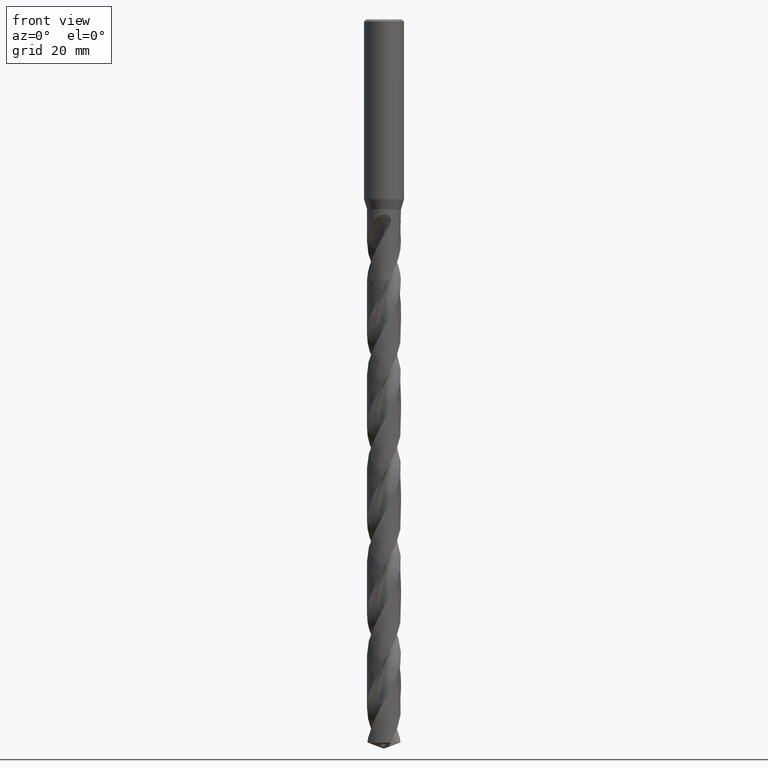
[diagram: clean part render]
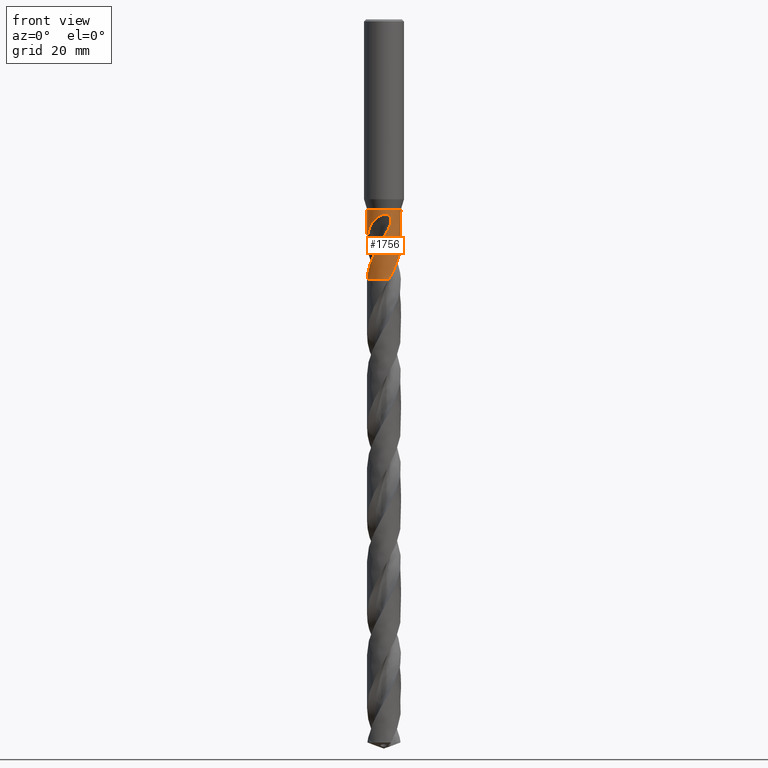
[diagram: same view with one face highlighted and labeled with its STEP entity id]
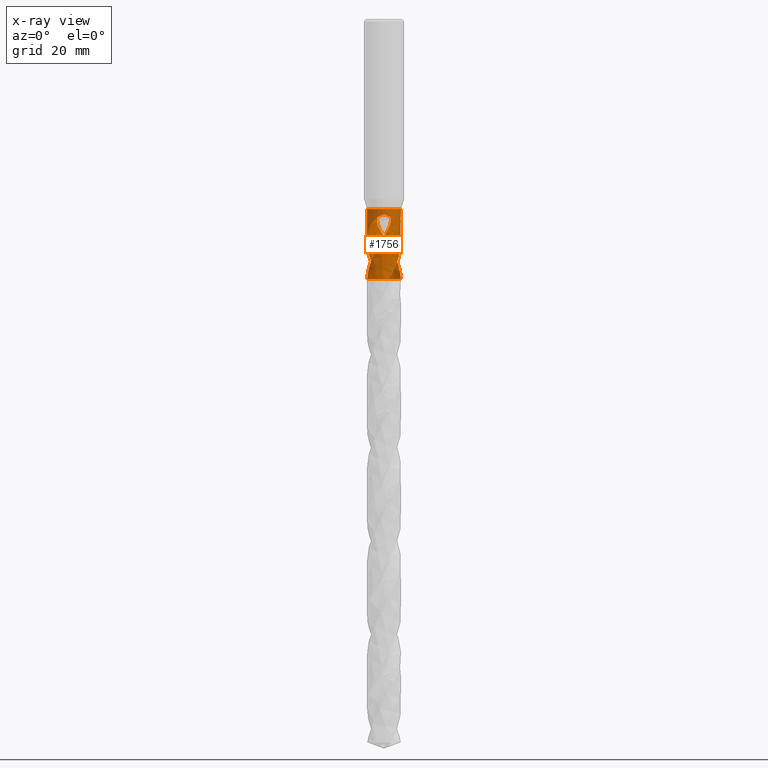
[diagram: x-ray of the same camera — body ghosted, the highlighted face saturated]
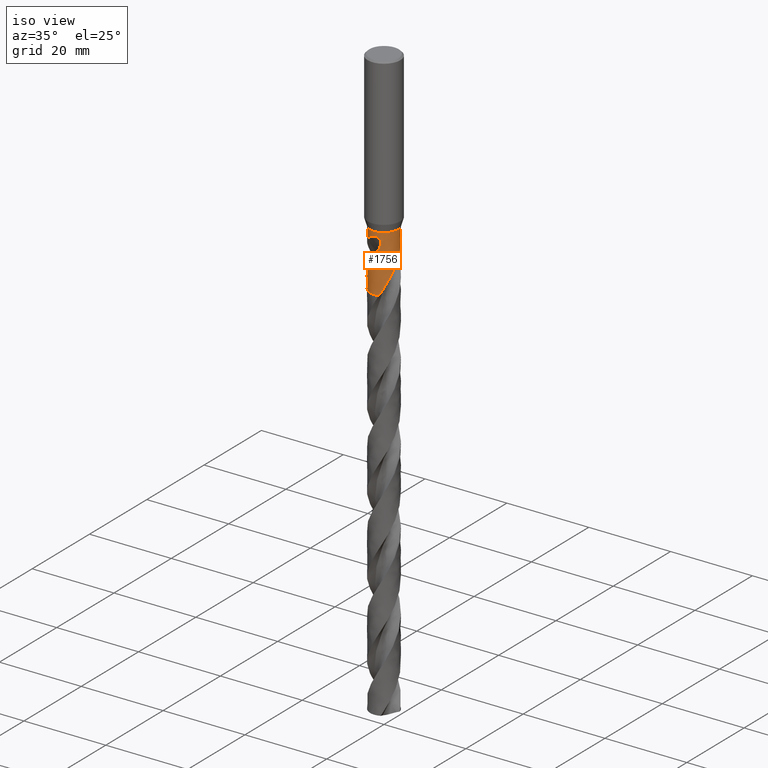
[diagram: same view with one face highlighted and labeled with its STEP entity id]
A machine part, front view. The second image highlights one B-rep face of the part: STEP entity #1756.
The next image is the same camera in x-ray: the body ghosted, the highlighted face saturated — about 0% of this face is hidden behind the body in this view.
A second angle (iso view) of the same face is appended — the face is thin or edge-on in the first view.
In plain terms, the highlighted face is a freeform B-spline surface patch.
Its self-contained STEP definition (entity closure, byte-faithful):
#75 = VERTEX_POINT('', #76);
#76 = CARTESIAN_POINT('', (-3.4, 2.53501887423502E-15, -38.));
#90 = EDGE_CURVE('', #75, #75, #91, .T.);
#91 = CIRCLE('', #92, 3.4);
#92 = AXIS2_PLACEMENT_3D('', #93, #94, #95);
#93 = CARTESIAN_POINT('', (1.42477179352876E-31, 2.32682891837997E-15, -38.));
#94 = DIRECTION('', (3.74939945665464E-33, 6.12323399573677E-17, -1.));
#95 = DIRECTION('', (-1., 6.12323399573677E-17, 0.));
#207 = VERTEX_POINT('', #208);
#208 = CARTESIAN_POINT('', (-1.01981526723016, 3.24345137480498, -52.));
#217 = VERTEX_POINT('', #218);
#218 = CARTESIAN_POINT('', (-2.55409860288971, -2.24423268105533, -41.0301496172199));
#242 = EDGE_CURVE('', #217, #243, #245, .T.);
#243 = VERTEX_POINT('', #244);
#244 = CARTESIAN_POINT('', (-3.4, 2.93030044614145E-15, -44.4554379627112));
#245 = B_SPLINE_CURVE_WITH_KNOTS('', 3, (#246, #247, #248, #249, #250, #251, #252, #253, #254, #255, #256, #257, #258, #259, #260, #261, #262, #263, #264, #265, #266, #267, #268, #269, #270, #271, #272, #273, #274, #275, #276, #277, #278, #279, #280, #281, #282, #283, #284, #285, #286, #287, #288), .UNSPECIFIED., .F., .U., (4, 3, 3, 3, 3, 3, 3, 3, 3, 3, 3, 3, 3, 3, 4), (0., 0.294497462253283, 0.589029037965713, 0.883600293820618, 1.17822643304331, 1.4729099410799, 1.76765656362606, 2.0624726981691, 2.3573585003823, 2.65232901194258, 2.94738374875909, 3.38981033125492, 3.6849946518539, 3.98025226271738, 4.21644598377467), .UNSPECIFIED.);
#246 = CARTESIAN_POINT('', (-2.55409860288971, -2.24423268105533, -41.0301496172199));
#247 = CARTESIAN_POINT('', (-2.59585409704951, -2.19671191808063, -41.1052148165969));
#248 = CARTESIAN_POINT('', (-2.63602888857356, -2.14831416682471, -41.1806256005673));
#249 = CARTESIAN_POINT('', (-2.67459597031475, -2.09917517029334, -41.2563518680681));
#250 = CARTESIAN_POINT('', (-2.71316751951912, -2.05003048168864, -41.3320869074099));
#251 = CARTESIAN_POINT('', (-2.75014397435702, -2.00012769284927, -41.4081627832706));
#252 = CARTESIAN_POINT('', (-2.78550398081797, -1.94960703036464, -41.4845571130037));
#253 = CARTESIAN_POINT('', (-2.82086875108086, -1.8990795615908, -41.5609617348011));
#254 = CARTESIAN_POINT('', (-2.85462712076724, -1.84791955333197, -41.6377108437258));
#255 = CARTESIAN_POINT('', (-2.88677459458486, -1.7962551155277, -41.7147737018479));
#256 = CARTESIAN_POINT('', (-2.91892805799445, -1.74458105180682, -41.7918509180213));
#257 = CARTESIAN_POINT('', (-2.94947998525231, -1.69238627579568, -41.869265334567));
#258 = CARTESIAN_POINT('', (-2.97843165960981, -1.63980024668676, -41.9469921730345));
#259 = CARTESIAN_POINT('', (-3.00738897135991, -1.58720397816689, -42.0247341462641));
#260 = CARTESIAN_POINT('', (-3.03475354663895, -1.53420137495702, -42.1028117307094));
#261 = CARTESIAN_POINT('', (-3.06053283754773, -1.48092496443678, -42.1812066285661));
#262 = CARTESIAN_POINT('', (-3.08631764979468, -1.42763714332031, -42.259618316828));
#263 = CARTESIAN_POINT('', (-3.11052481628576, -1.37405873649729, -42.3383675587236));
#264 = CARTESIAN_POINT('', (-3.13317473573655, -1.32030908326126, -42.4174295420273));
#265 = CARTESIAN_POINT('', (-3.15582999686391, -1.26654675389787, -42.4965101710284));
#266 = CARTESIAN_POINT('', (-3.1769332864866, -1.21259863998223, -42.5759244620576));
#267 = CARTESIAN_POINT('', (-3.19651018604044, -1.15858647952569, -42.6556541699789));
#268 = CARTESIAN_POINT('', (-3.21609171178946, -1.10456155551607, -42.7354027187381));
#269 = CARTESIAN_POINT('', (-3.23414994447546, -1.05046244823569, -42.8154895246648));
#270 = CARTESIAN_POINT('', (-3.25072066676467, -0.996401097284163, -42.8958931383286));
#271 = CARTESIAN_POINT('', (-3.26729614918494, -0.942324216586184, -42.9763198488577));
#272 = CARTESIAN_POINT('', (-3.28238812062962, -0.888269596016015, -43.057080852406));
#273 = CARTESIAN_POINT('', (-3.2960393073609, -0.834340988045021, -43.1381540400401));
#274 = CARTESIAN_POINT('', (-3.30969439202317, -0.780396981413327, -43.2192503771408));
#275 = CARTESIAN_POINT('', (-3.32191092000294, -0.726566444441254, -43.3006772589279));
#276 = CARTESIAN_POINT('', (-3.33273559157755, -0.67295874809113, -43.3824212156287));
#277 = CARTESIAN_POINT('', (-3.34896689327792, -0.592575460069527, -43.5049940636128));
#278 = CARTESIAN_POINT('', (-3.36207280974341, -0.512666386333111, -43.6283314692445));
#279 = CARTESIAN_POINT('', (-3.37224273872074, -0.43356534818321, -43.7523823842722));
#280 = CARTESIAN_POINT('', (-3.37902805337968, -0.380789617409455, -43.8351483990662));
#281 = CARTESIAN_POINT('', (-3.38450908362003, -0.328359313033455, -43.9182526414147));
#282 = CARTESIAN_POINT('', (-3.38874952943392, -0.276363215283395, -44.0016789915487));
#283 = CARTESIAN_POINT('', (-3.39299102809301, -0.224354207607262, -44.0851260553142));
#284 = CARTESIAN_POINT('', (-3.39599267920062, -0.172767032365532, -44.168909245948));
#285 = CARTESIAN_POINT('', (-3.39782246883476, -0.121665402979636, -44.2530021409239));
#286 = CARTESIAN_POINT('', (-3.39928622389658, -0.080786239995666, -44.3202729344548));
#287 = CARTESIAN_POINT('', (-3.4, -0.0402128582903194, -44.3877509311944));
#288 = CARTESIAN_POINT('', (-3.4, 2.55123626158621E-15, -44.4554379627112));
#290 = EDGE_CURVE('', #207, #243, #291, .T.);
#291 = B_SPLINE_CURVE_WITH_KNOTS('', 3, (#292, #293, #294, #295, #296, #297, #298, #299, #300, #301, #302, #303, #304, #305, #306, #307, #308, #309, #310, #311, #312, #313, #314, #315, #316, #317, #318, #319, #320, #321, #322, #323, #324, #325, #326, #327, #328, #329, #330, #331, #332, #333, #334, #335, #336, #337, #338, #339, #340, #341, #342, #343, #344, #345, #346, #347, #348, #349, #350, #351, #352, #353, #354, #355, #356, #357, #358, #359, #360, #361, #362, #363, #364, #365, #366, #367), .UNSPECIFIED., .F., .U., (4, 3, 3, 3, 3, 3, 3, 3, 3, 3, 3, 3, 3, 3, 3, 3, 3, 3, 3, 3, 3, 3, 3, 3, 3, 4), (34.2782500764286, 34.8886254634724, 35.554348291112, 36.2198671834141, 36.8851853349447, 37.5503059039471, 37.9936398338563, 38.4369039153097, 38.8801207197651, 39.1756228966414, 39.4710918223571, 39.7665215189612, 39.963509577349, 40.4064815261087, 40.7018680917021, 41.1447260579386, 41.3416836576543, 41.6370378607565, 41.9323586914656, 42.0636652580255, 42.2606080751495, 42.4576037983614, 42.6546008521975, 42.7421567684026, 42.8297065441209, 42.9643094080261), .UNSPECIFIED.);
#292 = CARTESIAN_POINT('', (-1.01981526723016, 3.24345137480498, -52.));
#293 = CARTESIAN_POINT('', (-1.11651569050492, 3.21304655086673, -51.823591608134));
#294 = CARTESIAN_POINT('', (-1.21188781795016, 3.17830211098418, -51.6471289668133));
#295 = CARTESIAN_POINT('', (-1.30548980566782, 3.13937834089767, -51.4707233152073));
#296 = CARTESIAN_POINT('', (-1.40757940701609, 3.09692505258622, -51.278321603586));
#297 = CARTESIAN_POINT('', (-1.50762855810729, 3.04947238920429, -51.0858648453563));
#298 = CARTESIAN_POINT('', (-1.60510164433776, 2.99727354629907, -50.8934661309979));
#299 = CARTESIAN_POINT('', (-1.70254487098416, 2.94509069381541, -50.7011263554276));
#300 = CARTESIAN_POINT('', (-1.79747118552402, 2.88813383181037, -50.5087312479636));
#301 = CARTESIAN_POINT('', (-1.88937462936946, 2.82670541618596, -50.3163952696802));
#302 = CARTESIAN_POINT('', (-1.98125035233661, 2.76529552924297, -50.124117305787));
#303 = CARTESIAN_POINT('', (-2.07015905173271, 2.69938039643695, -49.9317851345366));
#304 = CARTESIAN_POINT('', (-2.15562148755941, 2.62931474007433, -49.7395089947141));
#305 = CARTESIAN_POINT('', (-2.24105854322161, 2.55926989142527, -49.5472899560029));
#306 = CARTESIAN_POINT('', (-2.32309996352238, 2.48503817212179, -49.3550120001744));
#307 = CARTESIAN_POINT('', (-2.40132082278277, 2.4070019331255, -49.1627991683305));
#308 = CARTESIAN_POINT('', (-2.45345867951571, 2.35498713442299, -49.0346803368108));
#309 = CARTESIAN_POINT('', (-2.50391919062319, 2.30126347625012, -48.9065503504121));
#310 = CARTESIAN_POINT('', (-2.55257339662779, 2.24596728712332, -48.7784354407222));
#311 = CARTESIAN_POINT('', (-2.60121993703106, 2.19067981006019, -48.6503407158816));
#312 = CARTESIAN_POINT('', (-2.64807171157651, 2.13380778689343, -48.5222260056206));
#313 = CARTESIAN_POINT('', (-2.69301052201745, 2.0754985734284, -48.3941167222473));
#314 = CARTESIAN_POINT('', (-2.73794453944191, 2.01719557902032, -48.2660211025624));
#315 = CARTESIAN_POINT('', (-2.78098069189278, 1.9574392334168, -48.1378989150241));
#316 = CARTESIAN_POINT('', (-2.82204943032612, 1.89632196970769, -48.0098175671958));
#317 = CARTESIAN_POINT('', (-2.84943084160525, 1.85557377539462, -47.9244229776405));
#318 = CARTESIAN_POINT('', (-2.87594128714018, 1.81421505617973, -47.8390337967127));
#319 = CARTESIAN_POINT('', (-2.90155498721751, 1.77228063696277, -47.7536649745232));
#320 = CARTESIAN_POINT('', (-2.92716580513247, 1.73035093638487, -47.6683057583963));
#321 = CARTESIAN_POINT('', (-2.9518782986152, 1.68784638539556, -47.5829527556918));
#322 = CARTESIAN_POINT('', (-2.97563270744125, 1.64487385242938, -47.4975753638692));
#323 = CARTESIAN_POINT('', (-2.99938396241837, 1.60190702488311, -47.412209307517));
#324 = CARTESIAN_POINT('', (-3.02218056041577, 1.55846771014795, -47.3268088524155));
#325 = CARTESIAN_POINT('', (-3.04399068267358, 1.51463550856185, -47.2413647734473));
#326 = CARTESIAN_POINT('', (-3.05853334269102, 1.4854088587546, -47.1843919524677));
#327 = CARTESIAN_POINT('', (-3.07263899034916, 1.45600496378339, -47.1273965683381));
#328 = CARTESIAN_POINT('', (-3.08630353894531, 1.42643978684473, -47.0703810548881));
#329 = CARTESIAN_POINT('', (-3.11703134940296, 1.35995583776109, -46.9421688510157));
#330 = CARTESIAN_POINT('', (-3.14553440691543, 1.29264105446684, -46.8138327087568));
#331 = CARTESIAN_POINT('', (-3.17177611697021, 1.22467802455068, -46.6853995266693));
#332 = CARTESIAN_POINT('', (-3.18927485166455, 1.17935830159651, -46.5997565493402));
#333 = CARTESIAN_POINT('', (-3.20577086235581, 1.13374383605562, -46.5140583580211));
#334 = CARTESIAN_POINT('', (-3.2212552072284, 1.08789470533869, -46.4283093355969));
#335 = CARTESIAN_POINT('', (-3.24447009333875, 1.01915544923127, -46.2997502130746));
#336 = CARTESIAN_POINT('', (-3.26541278354455, 0.949880638822927, -46.171046398725));
#337 = CARTESIAN_POINT('', (-3.28407152843136, 0.880269388395684, -46.0422147671114));
#338 = CARTESIAN_POINT('', (-3.29236985856606, 0.849310331897574, -45.98491791154));
#339 = CARTESIAN_POINT('', (-3.30021753572651, 0.818281835355571, -45.9275915101157));
#340 = CARTESIAN_POINT('', (-3.30761539681033, 0.787197806642801, -45.8702390042332));
#341 = CARTESIAN_POINT('', (-3.31870910108083, 0.740584735896008, -45.7842341803761));
#342 = CARTESIAN_POINT('', (-3.32879421364087, 0.693835940707518, -45.6981669088611));
#343 = CARTESIAN_POINT('', (-3.33787863340228, 0.64696694558265, -45.6120655210723));
#344 = CARTESIAN_POINT('', (-3.34696202670521, 0.600103246236572, -45.5259738619731));
#345 = CARTESIAN_POINT('', (-3.35504528157373, 0.553114172817795, -45.4398390817658));
#346 = CARTESIAN_POINT('', (-3.36212759056977, 0.506061325067964, -45.3536627594106));
#347 = CARTESIAN_POINT('', (-3.36527655122842, 0.485140525576589, -45.3153467456704));
#348 = CARTESIAN_POINT('', (-3.36822747345417, 0.464208723339211, -45.2770199532888));
#349 = CARTESIAN_POINT('', (-3.370980948301, 0.443269044928376, -45.2386837959717));
#350 = CARTESIAN_POINT('', (-3.37511080339828, 0.411862243547877, -45.1811845328536));
#351 = CARTESIAN_POINT('', (-3.37880064922253, 0.38041673747007, -45.123672963423));
#352 = CARTESIAN_POINT('', (-3.38206204940061, 0.348792623207798, -45.0662370269267));
#353 = CARTESIAN_POINT('', (-3.38532432571078, 0.317160013544706, -45.0087856610244));
#354 = CARTESIAN_POINT('', (-3.38815765847491, 0.285346598641686, -44.9514070769328));
#355 = CARTESIAN_POINT('', (-3.390554093673, 0.253264561037009, -44.8941626549658));
#356 = CARTESIAN_POINT('', (-3.39295054505802, 0.221182306731514, -44.8369178463365));
#357 = CARTESIAN_POINT('', (-3.39490973849281, 0.18882935000666, -44.7798035872768));
#358 = CARTESIAN_POINT('', (-3.39641131518961, 0.15617355106437, -44.7228533792137));
#359 = CARTESIAN_POINT('', (-3.39707869534014, 0.141659585803843, -44.6975416928309));
#360 = CARTESIAN_POINT('', (-3.39765557948195, 0.127086191178624, -44.6722614388345));
#361 = CARTESIAN_POINT('', (-3.39813980108981, 0.112453956130016, -44.6470137601628));
#362 = CARTESIAN_POINT('', (-3.39862398873816, 0.0978227472718844, -44.6217678521657));
#363 = CARTESIAN_POINT('', (-3.39901552303094, 0.0831323441876735, -44.5965542157662));
#364 = CARTESIAN_POINT('', (-3.39931216791002, 0.0683870243457775, -44.571371878196));
#365 = CARTESIAN_POINT('', (-3.39976824275384, 0.04571692309613, -44.5326554482683));
#366 = CARTESIAN_POINT('', (-3.4, 0.0229166375272877, -44.4940116735221));
#367 = CARTESIAN_POINT('', (-3.4, 2.55123626158621E-15, -44.4554379627112));
#488 = VERTEX_POINT('', #489);
#489 = CARTESIAN_POINT('', (-3.22341606146897, -1.08147533243428, -50.6958434352249));
#498 = EDGE_CURVE('', #499, #488, #501, .T.);
#499 = VERTEX_POINT('', #500);
#500 = CARTESIAN_POINT('', (-1.348582677939, -3.12110954001343, -45.7042586378968));
#501 = B_SPLINE_CURVE_WITH_KNOTS('', 3, (#502, #503, #504, #505, #506, #507, #508, #509, #510, #511, #512, #513, #514, #515, #516, #517, #518, #519, #520, #521, #522, #523, #524, #525, #526, #527, #528, #529, #530, #531, #532, #533, #534, #535, #536, #537, #538, #539, #540, #541, #542, #543, #544), .UNSPECIFIED., .F., .U., (4, 3, 3, 3, 3, 3, 3, 3, 3, 3, 3, 3, 3, 3, 4), (0., 0.197104232945698, 0.640656153390483, 0.936320271461288, 1.37980187486985, 1.67541139231976, 1.97102203912656, 2.2666365965729, 2.39800756632821, 2.8413513590886, 3.13690363376296, 3.80168191649961, 4.46624590481921, 5.13061953309459, 5.74940544642165), .UNSPECIFIED.);
#502 = CARTESIAN_POINT('', (-1.34858267793901, -3.12110954001343, -45.7042586378968));
#503 = CARTESIAN_POINT('', (-1.37733210712316, -3.10868736075271, -45.7620153274575));
#504 = CARTESIAN_POINT('', (-1.40598641400859, -3.09583504350361, -45.8197286267047));
#505 = CARTESIAN_POINT('', (-1.43454761604354, -3.08254329041845, -45.8773850438953));
#506 = CARTESIAN_POINT('', (-1.49882008662161, -3.05263230109622, -46.0071316971693));
#507 = CARTESIAN_POINT('', (-1.5626421066332, -3.02048203689589, -46.1366061412871));
#508 = CARTESIAN_POINT('', (-1.62574396320339, -2.9861273526271, -46.2658258114556));
#509 = CARTESIAN_POINT('', (-1.66780658070428, -2.96322710812867, -46.3519614317893));
#510 = CARTESIAN_POINT('', (-1.70955482182827, -2.93934510316698, -46.4379958667583));
#511 = CARTESIAN_POINT('', (-1.75090847073665, -2.91450159154233, -46.5239359955196));
#512 = CARTESIAN_POINT('', (-1.81293690572007, -2.87723754867676, -46.6528419525525));
#513 = CARTESIAN_POINT('', (-1.87408926857632, -2.83780279854853, -46.7815639730476));
#514 = CARTESIAN_POINT('', (-1.93416194865762, -2.79625062474156, -46.9100846770432));
#515 = CARTESIAN_POINT('', (-1.97420432208252, -2.76855338103705, -46.9957521387788));
#516 = CARTESIAN_POINT('', (-2.01377375129537, -2.73991133615525, -47.0813418938916));
#517 = CARTESIAN_POINT('', (-2.05281705040655, -2.71033986015781, -47.1668438914144));
#518 = CARTESIAN_POINT('', (-2.09186049868011, -2.68076827118447, -47.2523462155921));
#519 = CARTESIAN_POINT('', (-2.13038248349691, -2.6502627830239, -47.3377704012401));
#520 = CARTESIAN_POINT('', (-2.16829249376434, -2.61887526649997, -47.4231353360509));
#521 = CARTESIAN_POINT('', (-2.2062030055441, -2.5874873347499, -47.5085014001563));
#522 = CARTESIAN_POINT('', (-2.24350561909301, -2.55521324843948, -47.5938183225662));
#523 = CARTESIAN_POINT('', (-2.28008957513577, -2.52214026758172, -47.6791269748896));
#524 = CARTESIAN_POINT('', (-2.29634746792813, -2.50744265050387, -47.7170380997038));
#525 = CARTESIAN_POINT('', (-2.31246342972937, -2.49258758425815, -47.7549496418142));
#526 = CARTESIAN_POINT('', (-2.32842812392411, -2.47758399892299, -47.7928655141747));
#527 = CARTESIAN_POINT('', (-2.38230492857689, -2.42695069355969, -47.9208219926068));
#528 = CARTESIAN_POINT('', (-2.43447908823551, -2.37460793959428, -48.0488415198876));
#529 = CARTESIAN_POINT('', (-2.48487324938727, -2.32064752482567, -48.1768571604326));
#530 = CARTESIAN_POINT('', (-2.51846819128547, -2.28467516299799, -48.2621979599991));
#531 = CARTESIAN_POINT('', (-2.55127817306192, -2.24797751483276, -48.3475487397748));
#532 = CARTESIAN_POINT('', (-2.58328357316791, -2.21057593866413, -48.4328860673132));
#533 = CARTESIAN_POINT('', (-2.65527251300675, -2.12644951600532, -48.6248331674221));
#534 = CARTESIAN_POINT('', (-2.72320590624197, -2.0387299366806, -48.8168026794785));
#535 = CARTESIAN_POINT('', (-2.78666912553904, -1.94794126830545, -49.0087224261953));
#536 = CARTESIAN_POINT('', (-2.85011188716784, -1.85718186608606, -49.2005803066758));
#537 = CARTESIAN_POINT('', (-2.90912426458447, -1.76330789669891, -49.3925059462346));
#538 = CARTESIAN_POINT('', (-2.96340289454902, -1.66680631285654, -49.5843730201214));
#539 = CARTESIAN_POINT('', (-3.01766597675207, -1.57033237126697, -49.7761851349293));
#540 = CARTESIAN_POINT('', (-3.06723177642148, -1.47117049246501, -49.9680502238688));
#541 = CARTESIAN_POINT('', (-3.11183071992945, -1.36985750007185, -50.1598579471059));
#542 = CARTESIAN_POINT('', (-3.15336939157065, -1.27549636070417, -50.3385042872904));
#543 = CARTESIAN_POINT('', (-3.19062227437362, -1.17921960534491, -50.5171967857548));
#544 = CARTESIAN_POINT('', (-3.22341606146898, -1.08147533243427, -50.6958434352249));
#547 = VERTEX_POINT('', #548);
#548 = CARTESIAN_POINT('', (-0.474275090858431, -3.36675855062272, -44.1108927009844));
#557 = EDGE_CURVE('', #558, #547, #560, .T.);
#558 = VERTEX_POINT('', #559);
#559 = CARTESIAN_POINT('', (0.361662269107303, -3.38071004422209, -39.));
#560 = B_SPLINE_CURVE_WITH_KNOTS('', 3, (#561, #562, #563, #564, #565, #566, #567, #568, #569, #570, #571, #572, #573, #574, #575, #576, #577, #578, #579, #580, #581, #582, #583, #584, #585, #586, #587, #588, #589, #590, #591, #592, #593, #594, #595, #596, #597, #598, #599, #600, #601, #602, #603, #604, #605, #606, #607, #608, #609, #610, #611, #612, #613, #614, #615, #616, #617, #618, #619, #620, #621, #622, #623, #624, #625, #626, #627, #628, #629, #630, #631, #632, #633, #634, #635, #636, #637, #638, #639, #640, #641, #642, #643, #644, #645, #646, #647, #648, #649, #650, #651, #652, #653, #654, #655, #656, #657, #658, #659, #660, #661, #662, #663, #664, #665, #666, #667, #668, #669, #670, #671, #672), .UNSPECIFIED., .F., .U., (4, 3, 3, 3, 3, 3, 3, 3, 3, 3, 3, 3, 3, 3, 3, 3, 3, 3, 3, 3, 3, 3, 3, 3, 3, 3, 3, 3, 3, 3, 3, 3, 3, 3, 3, 3, 3, 4), (0., 0.131885658460811, 0.263523674171556, 0.394862116388049, 0.525864453439959, 0.613083586781769, 0.700214592501238, 0.787280177488184, 0.874309565955179, 0.961334135145524, 1.04838260534099, 1.13547744241708, 1.26596540602487, 1.39667047927151, 1.48403132701103, 1.52292134646999, 1.71960957997732, 1.85096471041281, 2.04826719619229, 2.24580141699503, 2.44348727107082, 2.64126251558136, 2.83908249495842, 3.03691299820265, 3.33420904835955, 3.63136678520649, 3.92832855357418, 4.22505794370769, 4.52154187836646, 4.81777620310408, 5.11378458713064, 5.31093189411449, 5.36932020868748, 5.40825352379965, 5.70480590919395, 6.00117652579552, 6.13266126509959, 6.22945395271632), .UNSPECIFIED.);
#561 = CARTESIAN_POINT('', (0.361662269109079, -3.3807100442219, -39.));
#562 = CARTESIAN_POINT('', (0.405374717847462, -3.37603376521772, -39.0000409163983));
#563 = CARTESIAN_POINT('', (0.449055059418633, -3.37049930988744, -39.0019581643776));
#564 = CARTESIAN_POINT('', (0.492366293611086, -3.36416043507376, -39.0060328536916));
#565 = CARTESIAN_POINT('', (0.535596201954547, -3.35783346281575, -39.010099891929));
#566 = CARTESIAN_POINT('', (0.578580978078161, -3.35068565980951, -39.0163314911563));
#567 = CARTESIAN_POINT('', (0.620873259003204, -3.342830596404, -39.0249950531498));
#568 = CARTESIAN_POINT('', (0.663069293822529, -3.33499340905641, -39.0336388991553));
#569 = CARTESIAN_POINT('', (0.704725255100965, -3.32642297934269, -39.0447404849863));
#570 = CARTESIAN_POINT('', (0.745277912548836, -3.31731229055493, -39.0584925850983));
#571 = CARTESIAN_POINT('', (0.785726792630571, -3.30822491671977, -39.0722094925295));
#572 = CARTESIAN_POINT('', (0.825251084582171, -3.29856035679398, -39.0886307376051));
#573 = CARTESIAN_POINT('', (0.863205403571018, -3.2885979430824, -39.1077896988424));
#574 = CARTESIAN_POINT('', (0.888474745197145, -3.28196513706176, -39.1205454101714));
#575 = CARTESIAN_POINT('', (0.913118281243772, -3.2751838541242, -39.1345455740446));
#576 = CARTESIAN_POINT('', (0.936943186391018, -3.26835393821972, -39.1497432073108));
#577 = CARTESIAN_POINT('', (0.960744018468942, -3.26153092337268, -39.1649254846427));
#578 = CARTESIAN_POINT('', (0.983785244416128, -3.2546431649757, -39.1813402202197));
#579 = CARTESIAN_POINT('', (1.0058909940487, -3.24779668515332, -39.1988900416265));
#580 = CARTESIAN_POINT('', (1.0279801459808, -3.24095534588592, -39.2164266860688));
#581 = CARTESIAN_POINT('', (1.04919019782489, -3.23413855774513, -39.2351405018302));
#582 = CARTESIAN_POINT('', (1.06937781967865, -3.22744962451485, -39.2548885789638));
#583 = CARTESIAN_POINT('', (1.0895570487598, -3.22076347213197, -39.2746284460606));
#584 = CARTESIAN_POINT('', (1.1087646505494, -3.21418892444838, -39.2954498904883));
#585 = CARTESIAN_POINT('', (1.12690031691384, -3.20781789940443, -39.3171771986143));
#586 = CARTESIAN_POINT('', (1.14503497901071, -3.20144722715777, -39.3389033035845));
#587 = CARTESIAN_POINT('', (1.16214081950266, -3.19526532050466, -39.3615852093665));
#588 = CARTESIAN_POINT('', (1.17816331974699, -3.18934651488401, -39.385031366778));
#589 = CARTESIAN_POINT('', (1.19419022051709, -3.18342608368331, -39.4084839635977));
#590 = CARTESIAN_POINT('', (1.20916828285513, -3.17775620591442, -39.4327505823735));
#591 = CARTESIAN_POINT('', (1.22308429238302, -3.1723910247203, -39.4576402762459));
#592 = CARTESIAN_POINT('', (1.2370077143554, -3.1670229857308, -39.4825432277603));
#593 = CARTESIAN_POINT('', (1.24989521891657, -3.16194961397235, -39.508116466889));
#594 = CARTESIAN_POINT('', (1.26176590899893, -3.15720553510397, -39.5341820562513));
#595 = CARTESIAN_POINT('', (1.27955091471761, -3.1500978211279, -39.573234264055));
#596 = CARTESIAN_POINT('', (1.29510297047258, -3.14371138606263, -39.6135029299895));
#597 = CARTESIAN_POINT('', (1.30857272138684, -3.13809455447765, -39.6544775315615));
#598 = CARTESIAN_POINT('', (1.32206488366131, -3.1324683774462, -39.6955203078577));
#599 = CARTESIAN_POINT('', (1.33351083823731, -3.12759619739276, -39.737388965319));
#600 = CARTESIAN_POINT('', (1.34310771055953, -3.12346949366174, -39.7796863902392));
#601 = CARTESIAN_POINT('', (1.34952208209761, -3.12071128139532, -39.8079572048789));
#602 = CARTESIAN_POINT('', (1.35511983494533, -3.11828127981783, -39.8364574682026));
#603 = CARTESIAN_POINT('', (1.35996155326577, -3.11616825181824, -39.8650945723493));
#604 = CARTESIAN_POINT('', (1.36211691833569, -3.11522760503942, -39.8778428178886));
#605 = CARTESIAN_POINT('', (1.3641230848933, -3.11434942555966, -39.8906218789302));
#606 = CARTESIAN_POINT('', (1.36598527461916, -3.11353243591963, -39.9034247284815));
#607 = CARTESIAN_POINT('', (1.37540339301376, -3.10940046963811, -39.9681757853628));
#608 = CARTESIAN_POINT('', (1.38116130282121, -3.10683155305529, -40.0336423548638));
#609 = CARTESIAN_POINT('', (1.38387762280943, -3.10562114963936, -40.0991376218377));
#610 = CARTESIAN_POINT('', (1.38569167421451, -3.10481280083403, -40.1428776015145));
#611 = CARTESIAN_POINT('', (1.38615109432847, -3.10460718939001, -40.1867044783683));
#612 = CARTESIAN_POINT('', (1.38541103913016, -3.10493739915256, -40.2304820218378));
#613 = CARTESIAN_POINT('', (1.38429943633431, -3.10543339201378, -40.29623825168));
#614 = CARTESIAN_POINT('', (1.38048401154885, -3.10713826503301, -40.3619862464038));
#615 = CARTESIAN_POINT('', (1.37439593783401, -3.10982890302109, -40.4274160504568));
#616 = CARTESIAN_POINT('', (1.36830071357619, -3.11252270120786, -40.4929227028937));
#617 = CARTESIAN_POINT('', (1.35991713727487, -3.11620799436552, -40.5582103736916));
#618 = CARTESIAN_POINT('', (1.34957823750792, -3.12067918582558, -40.6230844472452));
#619 = CARTESIAN_POINT('', (1.3392314012872, -3.12515380950813, -40.6880083201099));
#620 = CARTESIAN_POINT('', (1.32691366512889, -3.13042031397968, -40.7525901814345));
#621 = CARTESIAN_POINT('', (1.31288722910108, -3.13629193852601, -40.8167070408568));
#622 = CARTESIAN_POINT('', (1.29885445053947, -3.14216621812863, -40.8808528929147));
#623 = CARTESIAN_POINT('', (1.28309932012057, -3.14865085533999, -40.9445870193221));
#624 = CARTESIAN_POINT('', (1.26583361137165, -3.15557685191183, -41.0078329064937));
#625 = CARTESIAN_POINT('', (1.24856399728473, -3.16250441507778, -41.0710930992795));
#626 = CARTESIAN_POINT('', (1.22977131961204, -3.16987807696721, -41.1339055265553));
#627 = CARTESIAN_POINT('', (1.20962870804284, -3.17754596956182, -41.1962237527475));
#628 = CARTESIAN_POINT('', (1.18948502490258, -3.18521427008229, -41.2585452942203));
#629 = CARTESIAN_POINT('', (1.16798052170923, -3.19318080131084, -41.3204040995477));
#630 = CARTESIAN_POINT('', (1.14526314759245, -3.20130790814733, -41.381775235944));
#631 = CARTESIAN_POINT('', (1.11112389462539, -3.21352117517172, -41.4740026535822));
#632 = CARTESIAN_POINT('', (1.07422413303696, -3.22610271089616, -41.5651943251927));
#633 = CARTESIAN_POINT('', (1.03499390051325, -3.23863978020099, -41.6553295558084));
#634 = CARTESIAN_POINT('', (0.995781919369958, -3.25117101678941, -41.745422852123));
#635 = CARTESIAN_POINT('', (0.954211377245377, -3.26366735296281, -41.8345219179359));
#636 = CARTESIAN_POINT('', (0.910653195252334, -3.27577635957901, -41.922655170098));
#637 = CARTESIAN_POINT('', (0.867123738847171, -3.28787738059256, -42.0107303004707));
#638 = CARTESIAN_POINT('', (0.821585468689554, -3.2995979388247, -42.097886765513));
#639 = CARTESIAN_POINT('', (0.774390423438291, -3.31063732113426, -42.1841957257468));
#640 = CARTESIAN_POINT('', (0.727232309207941, -3.32166806491712, -42.2704371475769));
#641 = CARTESIAN_POINT('', (0.678399747093186, -3.33202346917349, -42.3558673491323));
#642 = CARTESIAN_POINT('', (0.62822381076855, -3.34145699412448, -42.4405817629376));
#643 = CARTESIAN_POINT('', (0.578089380134555, -3.35088271563428, -42.5252261007164));
#644 = CARTESIAN_POINT('', (0.526596522110493, -3.35939115500769, -42.6091830897882));
#645 = CARTESIAN_POINT('', (0.474078504328707, -3.36678623790306, -42.6925745751822));
#646 = CARTESIAN_POINT('', (0.421604701483197, -3.37417509487574, -42.7758958532575));
#647 = CARTESIAN_POINT('', (0.368097197567057, -3.38045398994548, -42.8586776915186));
#648 = CARTESIAN_POINT('', (0.313880429728858, -3.38548062700606, -42.941053692742));
#649 = CARTESIAN_POINT('', (0.259705013530402, -3.39050343020319, -43.0233668650131));
#650 = CARTESIAN_POINT('', (0.20480720743783, -3.39427700888, -43.105292682755));
#651 = CARTESIAN_POINT('', (0.149521742693417, -3.39671065127197, -43.1869826905544));
#652 = CARTESIAN_POINT('', (0.112700554247843, -3.39833150415868, -43.2413898151975));
#653 = CARTESIAN_POINT('', (0.0757035500468104, -3.39935923537394, -43.2956990286744));
#654 = CARTESIAN_POINT('', (0.0386352190420973, -3.39978048112667, -43.3499606512367));
#655 = CARTESIAN_POINT('', (0.027656842494574, -3.39990523976476, -43.3660310948856));
#656 = CARTESIAN_POINT('', (0.0166720679249831, -3.39997688041735, -43.382097668951));
#657 = CARTESIAN_POINT('', (0.00568367022580967, -3.39999524939267, -43.3981617361195));
#658 = CARTESIAN_POINT('', (-0.00164339090497406, -3.40000749782131, -43.4088732525184));
#659 = CARTESIAN_POINT('', (-0.00897209933147267, -3.39999606250987, -43.4195836954687));
#660 = CARTESIAN_POINT('', (-0.0163016568949826, -3.39996091977282, -43.430293453137));
#661 = CARTESIAN_POINT('', (-0.07213039310924, -3.39969323995999, -43.5118689412345));
#662 = CARTESIAN_POINT('', (-0.128013159508489, -3.39804536577219, -43.5934145655209));
#663 = CARTESIAN_POINT('', (-0.183606662182448, -3.39503882063257, -43.6750956700976));
#664 = CARTESIAN_POINT('', (-0.23916608937982, -3.39203411832446, -43.7567267090654));
#665 = CARTESIAN_POINT('', (-0.294447408493182, -3.38767210261624, -43.8385096598723));
#666 = CARTESIAN_POINT('', (-0.349125484411918, -3.38202770481469, -43.9205946980748));
#667 = CARTESIAN_POINT('', (-0.373383397157326, -3.37952356934412, -43.9570117018));
#668 = CARTESIAN_POINT('', (-0.397524476615627, -3.37676755878894, -43.9934903697451));
#669 = CARTESIAN_POINT('', (-0.421521688926078, -3.3737693261047, -44.0300425186236));
#670 = CARTESIAN_POINT('', (-0.439187272682274, -3.37156217262709, -44.056950437724));
#671 = CARTESIAN_POINT('', (-0.456775446937758, -3.36922372449417, -44.083898889348));
#672 = CARTESIAN_POINT('', (-0.474275090858439, -3.36675855062272, -44.1108927009844));
#674 = EDGE_CURVE('', #558, #675, #677, .T.);
#675 = VERTEX_POINT('', #676);
#676 = CARTESIAN_POINT('', (0.358797213233602, -3.38101531492772, -39.));
#677 = LINE('', #678, #679);
#678 = CARTESIAN_POINT('', (0.361662269107303, -3.38071004422209, -39.));
#679 = VECTOR('', #680, 0.00288127321910656);
#680 = DIRECTION('', (-0.00286505587370073, -0.000305270705626359, 0.));
#682 = EDGE_CURVE('', #675, #217, #683, .T.);
#683 = B_SPLINE_CURVE_WITH_KNOTS('', 3, (#684, #685, #686, #687, #688, #689, #690, #691, #692, #693, #694, #695, #696, #697, #698, #699, #700, #701, #702, #703, #704, #705, #706, #707, #708, #709, #710, #711, #712, #713, #714, #715, #716, #717, #718, #719, #720, #721, #722, #723, #724, #725, #726, #727, #728, #729, #730, #731, #732, #733, #734, #735, #736, #737, #738, #739, #740, #741), .UNSPECIFIED., .F., .U., (4, 3, 3, 3, 3, 3, 3, 3, 3, 3, 3, 3, 3, 3, 3, 3, 3, 3, 3, 4), (0., 0.13107059280903, 0.261894759995168, 0.349141200328977, 0.375066723874549, 0.572479879804953, 0.76942190889678, 0.966025378008679, 1.16238298474722, 1.35856022070858, 1.554604191108, 1.75054950064775, 1.94642215192811, 2.2392595552453, 2.5319813457337, 2.82464705335208, 3.11730650516521, 3.41001145155212, 3.70279827189061, 3.92951720233076), .UNSPECIFIED.);
#684 = CARTESIAN_POINT('', (0.358797213192004, -3.38101531493215, -39.));
#685 = CARTESIAN_POINT('', (0.315350988673075, -3.38562587798173, -39.0000406202744));
#686 = CARTESIAN_POINT('', (0.271780651755736, -3.38939995131035, -39.00192666555));
#687 = CARTESIAN_POINT('', (0.228327244184776, -3.39232467042336, -39.0054024036259));
#688 = CARTESIAN_POINT('', (0.184955533299532, -3.3952438907764, -39.0088716069719));
#689 = CARTESIAN_POINT('', (0.141624698396362, -3.39732289260524, -39.0139298064413));
#690 = CARTESIAN_POINT('', (0.0985105468500513, -3.39857259333375, -39.0203540347194));
#691 = CARTESIAN_POINT('', (0.0697577840285155, -3.39940601687002, -39.0246383428959));
#692 = CARTESIAN_POINT('', (0.0410776717043745, -3.39987186603847, -39.0295339410086));
#693 = CARTESIAN_POINT('', (0.0125107407762357, -3.39997698247587, -39.0349828554964));
#694 = CARTESIAN_POINT('', (0.00402199742385836, -3.40000821811897, -39.0366020156628));
#695 = CARTESIAN_POINT('', (-0.00445770389077274, -3.40000762736055, -39.0382702343648));
#696 = CARTESIAN_POINT('', (-0.012927426247566, -3.39997542368333, -39.0399860971607));
#697 = CARTESIAN_POINT('', (-0.0774211911418301, -3.39973020473754, -39.0530517499755));
#698 = CARTESIAN_POINT('', (-0.14141239482549, -3.39764716931482, -39.0688890031229));
#699 = CARTESIAN_POINT('', (-0.204572967772154, -3.39383999340818, -39.0869573335026));
#700 = CARTESIAN_POINT('', (-0.267582807902078, -3.39004190333344, -39.1049825437805));
#701 = CARTESIAN_POINT('', (-0.329896057482642, -3.38452189985984, -39.1252660042149));
#702 = CARTESIAN_POINT('', (-0.391290731923671, -3.3774090014552, -39.1473945892023));
#703 = CARTESIAN_POINT('', (-0.452579863734504, -3.37030833072362, -39.1694851332833));
#704 = CARTESIAN_POINT('', (-0.513052627264712, -3.36160979218319, -39.1934509037402));
#705 = CARTESIAN_POINT('', (-0.572551157083935, -3.35144523639009, -39.2189729744956));
#706 = CARTESIAN_POINT('', (-0.631975281045426, -3.34129339187734, -39.2444631286376));
#707 = CARTESIAN_POINT('', (-0.690505503684232, -3.32966648079171, -39.2715397347948));
#708 = CARTESIAN_POINT('', (-0.748024539202815, -3.316694030017, -39.2999529445342));
#709 = CARTESIAN_POINT('', (-0.805490738708004, -3.30373349551621, -39.3283400543797));
#710 = CARTESIAN_POINT('', (-0.862010499418652, -3.28941606352439, -39.3580928591746));
#711 = CARTESIAN_POINT('', (-0.917493549572769, -3.27386706915421, -39.3890125529823));
#712 = CARTESIAN_POINT('', (-0.972938909421888, -3.25832863740339, -39.4199112426692));
#713 = CARTESIAN_POINT('', (-1.02740080832268, -3.24154600848387, -39.4520044773802));
#714 = CARTESIAN_POINT('', (-1.08080790280251, -3.22363991122452, -39.4851317132233));
#715 = CARTESIAN_POINT('', (-1.13418811969032, -3.20574282536677, -39.5182422774923));
#716 = CARTESIAN_POINT('', (-1.18655802583007, -3.18670898247067, -39.5524129944704));
#717 = CARTESIAN_POINT('', (-1.23786020983845, -3.16665471766322, -39.5875124970652));
#718 = CARTESIAN_POINT('', (-1.28914337054179, -3.1466078891551, -39.6225989844531));
#719 = CARTESIAN_POINT('', (-1.33939645128883, -3.12552708530726, -39.6586389603169));
#720 = CARTESIAN_POINT('', (-1.3885727711385, -3.10352471542482, -39.6955237103875));
#721 = CARTESIAN_POINT('', (-1.46209332500522, -3.07063029743906, -39.7506678786116));
#722 = CARTESIAN_POINT('', (-1.53329120196202, -3.03563736745787, -39.8077626931524));
#723 = CARTESIAN_POINT('', (-1.60204521328544, -2.99890832380538, -39.8665169027371));
#724 = CARTESIAN_POINT('', (-1.67077208037916, -2.96219378085734, -39.9252479160352));
#725 = CARTESIAN_POINT('', (-1.73714253514092, -2.9236990881623, -39.9857106575138));
#726 = CARTESIAN_POINT('', (-1.80106850426028, -2.88377395836803, -40.0476794103694));
#727 = CARTESIAN_POINT('', (-1.86498222573723, -2.84385647787058, -40.1096362905677));
#728 = CARTESIAN_POINT('', (-1.9265220331047, -2.80246576698374, -40.1731664239085));
#729 = CARTESIAN_POINT('', (-1.98562664968977, -2.75994326174322, -40.2380933435382));
#730 = CARTESIAN_POINT('', (-2.04473000289836, -2.71742166543225, -40.3030188753382));
#731 = CARTESIAN_POINT('', (-2.10145445176711, -2.67372841674779, -40.3694054389999));
#732 = CARTESIAN_POINT('', (-2.15577481719894, -2.62918902658802, -40.4370970767138));
#733 = CARTESIAN_POINT('', (-2.21010362685445, -2.58464271267931, -40.5047992372459));
#734 = CARTESIAN_POINT('', (-2.26207475108617, -2.53921152298481, -40.5738656007977));
#735 = CARTESIAN_POINT('', (-2.31168674953381, -2.49321165808878, -40.6441666549984));
#736 = CARTESIAN_POINT('', (-2.36131262519948, -2.4471989263425, -40.7144873734555));
#737 = CARTESIAN_POINT('', (-2.40861690433643, -2.40058134677937, -40.786098636366));
#738 = CARTESIAN_POINT('', (-2.45361984423469, -2.3536672789453, -40.8588908619291));
#739 = CARTESIAN_POINT('', (-2.48846778714619, -2.31733945766686, -40.9152573865731));
#740 = CARTESIAN_POINT('', (-2.52195312732779, -2.28081654997187, -40.9723606584091));
#741 = CARTESIAN_POINT('', (-2.55409860288971, -2.24423268105534, -41.0301496172199));
#864 = VERTEX_POINT('', #865);
#865 = CARTESIAN_POINT('', (-3.38220083072358, -0.347444298633193, -52.));
#871 = EDGE_CURVE('', #488, #864, #872, .T.);
#872 = B_SPLINE_CURVE_WITH_KNOTS('', 3, (#873, #874, #875, #876, #877, #878, #879, #880, #881, #882), .UNSPECIFIED., .F., .U., (4, 3, 3, 4), (0., 0.663980184538659, 1.32775544026028, 1.50556149680678), .UNSPECIFIED.);
#873 = CARTESIAN_POINT('', (-3.22341606146897, -1.08147533243428, -50.6958434352249));
#874 = CARTESIAN_POINT('', (-3.25860500862878, -0.976592110358573, -50.88753790132));
#875 = CARTESIAN_POINT('', (-3.28867778830804, -0.869962683169103, -51.0792920099132));
#876 = CARTESIAN_POINT('', (-3.31347471327866, -0.762158332935492, -51.2709919191187));
#877 = CARTESIAN_POINT('', (-3.33826398500207, -0.654387255107414, -51.4626326626494));
#878 = CARTESIAN_POINT('', (-3.35779532210777, -0.545378286994062, -51.6543331879348));
#879 = CARTESIAN_POINT('', (-3.37196570217811, -0.435714704060733, -51.8459797028958));
#880 = CARTESIAN_POINT('', (-3.37576153424379, -0.406339024476327, -51.8973162219697));
#881 = CARTESIAN_POINT('', (-3.37917406688204, -0.376908368757602, -51.9486630313021));
#882 = CARTESIAN_POINT('', (-3.38220083072358, -0.347444298633193, -52.));
#921 = EDGE_CURVE('', #547, #499, #922, .T.);
#922 = B_SPLINE_CURVE_WITH_KNOTS('', 3, (#923, #924, #925, #926, #927, #928, #929, #930, #931, #932, #933, #934, #935, #936, #937, #938, #939, #940, #941, #942, #943, #944, #945, #946, #947), .UNSPECIFIED., .F., .U., (4, 3, 3, 3, 3, 3, 3, 3, 4), (0., 0.295993246419339, 0.592046478728788, 0.723482462820537, 0.920638125404303, 1.11774699958249, 1.31486194557861, 1.51200754701735, 1.83606399551577), .UNSPECIFIED.);
#923 = CARTESIAN_POINT('', (-0.474275090858431, -3.36675855062272, -44.1108927009844));
#924 = CARTESIAN_POINT('', (-0.527789220311837, -3.35922001816573, -44.1934401137718));
#925 = CARTESIAN_POINT('', (-0.580263576070795, -3.35052521503031, -44.2765725546851));
#926 = CARTESIAN_POINT('', (-0.631556949633585, -3.3408286126902, -44.3602961034169));
#927 = CARTESIAN_POINT('', (-0.682860718293921, -3.33113004523997, -44.4440366195345));
#928 = CARTESIAN_POINT('', (-0.732999288804835, -3.32042514850377, -44.5283920780487));
#929 = CARTESIAN_POINT('', (-0.781767768593568, -3.30890301398941, -44.6134067163431));
#930 = CARTESIAN_POINT('', (-0.803419054356227, -3.30378763971392, -44.6511498700295));
#931 = CARTESIAN_POINT('', (-0.824796376400559, -3.29851272192456, -44.6890299672399));
#932 = CARTESIAN_POINT('', (-0.845910870580079, -3.2930889449018, -44.7270332783812));
#933 = CARTESIAN_POINT('', (-0.877582882767992, -3.28495320977555, -44.784038732711));
#934 = CARTESIAN_POINT('', (-0.908665640189508, -3.27648285015213, -44.841327187076));
#935 = CARTESIAN_POINT('', (-0.939256442272778, -3.26768990812309, -44.8988234075066));
#936 = CARTESIAN_POINT('', (-0.969839984636312, -3.25889905280935, -44.9563059831022));
#937 = CARTESIAN_POINT('', (-0.999934789680172, -3.24978549506033, -45.0140012286434));
#938 = CARTESIAN_POINT('', (-1.02969867663248, -3.24032724201451, -45.0718072074049));
#939 = CARTESIAN_POINT('', (-1.05946348044306, -3.23086869761301, -45.129614966844));
#940 = CARTESIAN_POINT('', (-1.08889997543512, -3.22106513726671, -45.1875366881865));
#941 = CARTESIAN_POINT('', (-1.11821765522442, -3.21085491349958, -45.2454449746561));
#942 = CARTESIAN_POINT('', (-1.14753989451806, -3.20064310183191, -45.3033622670595));
#943 = CARTESIAN_POINT('', (-1.17676504362311, -3.1900147176396, -45.3612568716353));
#944 = CARTESIAN_POINT('', (-1.20588317017548, -3.17896929520993, -45.4191241415164));
#945 = CARTESIAN_POINT('', (-1.25374584937617, -3.16081347363135, -45.5142429868021));
#946 = CARTESIAN_POINT('', (-1.30131612369742, -3.14153267975872, -45.6093016325785));
#947 = CARTESIAN_POINT('', (-1.348582677939, -3.12110954001343, -45.7042586378968));
#1061 = VERTEX_POINT('', #1062);
#1062 = CARTESIAN_POINT('', (3.22341606146897, 1.08147533243429, -50.6958434352249));
#1071 = EDGE_CURVE('', #1072, #1061, #1074, .T.);
#1072 = VERTEX_POINT('', #1073);
#1073 = CARTESIAN_POINT('', (1.348582677939, 3.12110954001344, -45.7042586378968));
#1074 = B_SPLINE_CURVE_WITH_KNOTS('', 3, (#1075, #1076, #1077, #1078, #1079, #1080, #1081, #1082, #1083, #1084, #1085, #1086, #1087, #1088, #1089, #1090, #1091, #1092, #1093, #1094, #1095, #1096, #1097, #1098, #1099, #1100, #1101, #1102, #1103, #1104, #1105, #1106, #1107, #1108, #1109, #1110, #1111, #1112, #1113, #1114, #1115, #1116, #1117), .UNSPECIFIED., .F., .U., (4, 3, 3, 3, 3, 3, 3, 3, 3, 3, 3, 3, 3, 3, 4), (0., 0.197104232945697, 0.640656153390493, 0.936320271461305, 1.37980187486986, 1.67541139231978, 1.97102203912657, 2.26663659657293, 2.39800756632824, 2.84135135908861, 3.13690363376298, 3.80168191649962, 4.46624590481922, 5.1306195330946, 5.74940544642157), .UNSPECIFIED.);
#1075 = CARTESIAN_POINT('', (1.34858267793901, 3.12110954001344, -45.7042586378968));
#1076 = CARTESIAN_POINT('', (1.37733210712315, 3.10868736075272, -45.7620153274575));
#1077 = CARTESIAN_POINT('', (1.40598641400859, 3.09583504350362, -45.8197286267047));
#1078 = CARTESIAN_POINT('', (1.43454761604354, 3.08254329041845, -45.8773850438953));
#1079 = CARTESIAN_POINT('', (1.49882008662162, 3.05263230109623, -46.0071316971693));
#1080 = CARTESIAN_POINT('', (1.56264210663321, 3.02048203689589, -46.1366061412871));
#1081 = CARTESIAN_POINT('', (1.62574396320339, 2.9861273526271, -46.2658258114556));
#1082 = CARTESIAN_POINT('', (1.66780658070429, 2.96322710812867, -46.3519614317894));
#1083 = CARTESIAN_POINT('', (1.70955482182828, 2.93934510316698, -46.4379958667583));
#1084 = CARTESIAN_POINT('', (1.75090847073666, 2.91450159154233, -46.5239359955196));
#1085 = CARTESIAN_POINT('', (1.81293690572007, 2.87723754867676, -46.6528419525526));
#1086 = CARTESIAN_POINT('', (1.87408926857632, 2.83780279854854, -46.7815639730476));
#1087 = CARTESIAN_POINT('', (1.93416194865763, 2.79625062474156, -46.9100846770432));
#1088 = CARTESIAN_POINT('', (1.97420432208252, 2.76855338103705, -46.9957521387788));
#1089 = CARTESIAN_POINT('', (2.01377375129538, 2.73991133615525, -47.0813418938916));
#1090 = CARTESIAN_POINT('', (2.05281705040656, 2.71033986015781, -47.1668438914145));
#1091 = CARTESIAN_POINT('', (2.09186049868012, 2.68076827118447, -47.2523462155921));
#1092 = CARTESIAN_POINT('', (2.13038248349691, 2.6502627830239, -47.3377704012401));
#1093 = CARTESIAN_POINT('', (2.16829249376434, 2.61887526649997, -47.4231353360509));
#1094 = CARTESIAN_POINT('', (2.2062030055441, 2.5874873347499, -47.5085014001564));
#1095 = CARTESIAN_POINT('', (2.24350561909302, 2.55521324843947, -47.5938183225662));
#1096 = CARTESIAN_POINT('', (2.28008957513578, 2.52214026758171, -47.6791269748896));
#1097 = CARTESIAN_POINT('', (2.29634746792814, 2.50744265050387, -47.7170380997039));
#1098 = CARTESIAN_POINT('', (2.31246342972938, 2.49258758425815, -47.7549496418143));
#1099 = CARTESIAN_POINT('', (2.32842812392412, 2.47758399892299, -47.7928655141747));
#1100 = CARTESIAN_POINT('', (2.3823049285769, 2.42695069355969, -47.9208219926068));
#1101 = CARTESIAN_POINT('', (2.43447908823551, 2.37460793959428, -48.0488415198876));
#1102 = CARTESIAN_POINT('', (2.48487324938728, 2.32064752482567, -48.1768571604326));
#1103 = CARTESIAN_POINT('', (2.51846819128547, 2.28467516299799, -48.2621979599991));
#1104 = CARTESIAN_POINT('', (2.55127817306192, 2.24797751483276, -48.3475487397748));
#1105 = CARTESIAN_POINT('', (2.58328357316792, 2.21057593866413, -48.4328860673132));
#1106 = CARTESIAN_POINT('', (2.65527251300676, 2.12644951600532, -48.6248331674221));
#1107 = CARTESIAN_POINT('', (2.72320590624198, 2.0387299366806, -48.8168026794785));
#1108 = CARTESIAN_POINT('', (2.78666912553905, 1.94794126830545, -49.0087224261953));
#1109 = CARTESIAN_POINT('', (2.85011188716784, 1.85718186608606, -49.2005803066758));
#1110 = CARTESIAN_POINT('', (2.90912426458447, 1.76330789669891, -49.3925059462346));
#1111 = CARTESIAN_POINT('', (2.96340289454903, 1.66680631285654, -49.5843730201214));
#1112 = CARTESIAN_POINT('', (3.01766597675207, 1.57033237126697, -49.7761851349293));
#1113 = CARTESIAN_POINT('', (3.06723177642149, 1.47117049246501, -49.9680502238688));
#1114 = CARTESIAN_POINT('', (3.11183071992946, 1.36985750007185, -50.1598579471059));
#1115 = CARTESIAN_POINT('', (3.15336939157065, 1.27549636070419, -50.3385042872904));
#1116 = CARTESIAN_POINT('', (3.19062227437361, 1.17921960534494, -50.5171967857548));
#1117 = CARTESIAN_POINT('', (3.22341606146897, 1.08147533243431, -50.6958434352249));
#1120 = VERTEX_POINT('', #1121);
#1121 = CARTESIAN_POINT('', (0.474275090858431, 3.36675855062273, -44.1108927009844));
#1130 = EDGE_CURVE('', #1131, #1120, #1133, .T.);
#1131 = VERTEX_POINT('', #1132);
#1132 = CARTESIAN_POINT('', (-0.361662269104851, 3.38071004422236, -39.));
#1133 = B_SPLINE_CURVE_WITH_KNOTS('', 3, (#1134, #1135, #1136, #1137, #1138, #1139, #1140, #1141, #1142, #1143, #1144, #1145, #1146, #1147, #1148, #1149, #1150, #1151, #1152, #1153, #1154, #1155, #1156, #1157, #1158, #1159, #1160, #1161, #1162, #1163, #1164, #1165, #1166, #1167, #1168, #1169, #1170, #1171, #1172, #1173, #1174, #1175, #1176, #1177, #1178, #1179, #1180, #1181, #1182, #1183, #1184, #1185, #1186, #1187, #1188, #1189, #1190, #1191, #1192, #1193, #1194, #1195, #1196, #1197, #1198, #1199, #1200, #1201, #1202, #1203, #1204, #1205, #1206, #1207, #1208, #1209, #1210, #1211, #1212, #1213, #1214, #1215, #1216, #1217, #1218, #1219, #1220, #1221, #1222, #1223, #1224, #1225, #1226, #1227, #1228, #1229, #1230, #1231, #1232, #1233, #1234, #1235, #1236, #1237, #1238, #1239, #1240, #1241, #1242, #1243, #1244, #1245), .UNSPECIFIED., .F., .U., (4, 3, 3, 3, 3, 3, 3, 3, 3, 3, 3, 3, 3, 3, 3, 3, 3, 3, 3, 3, 3, 3, 3, 3, 3, 3, 3, 3, 3, 3, 3, 3, 3, 3, 3, 3, 3, 4), (0., 0.131885658460806, 0.26352367417155, 0.394862116388042, 0.525864453439952, 0.613083586781763, 0.700214592501232, 0.787280177488179, 0.874309565955176, 0.961334135145523, 1.04838260534098, 1.13547744241707, 1.26596540602487, 1.39667047927151, 1.48403132701103, 1.52292134646999, 1.71960957997733, 1.85096471041281, 2.0482671961923, 2.24580141699503, 2.44348727107081, 2.64126251558135, 2.83908249495842, 3.03691299820265, 3.33420904835955, 3.63136678520649, 3.92832855357419, 4.2250579437077, 4.52154187836647, 4.81777620310409, 5.11378458713064, 5.31093189411449, 5.36932020868748, 5.40825352379965, 5.70480590919395, 6.00117652579552, 6.13266126509959, 6.22945395271622), .UNSPECIFIED.);
#1134 = CARTESIAN_POINT('', (-0.361662269109177, 3.3807100442219, -39.));
#1135 = CARTESIAN_POINT('', (-0.405374717847558, 3.37603376521771, -39.0000409163983));
#1136 = CARTESIAN_POINT('', (-0.449055059418727, 3.37049930988743, -39.0019581643776));
#1137 = CARTESIAN_POINT('', (-0.492366293611178, 3.36416043507375, -39.0060328536916));
#1138 = CARTESIAN_POINT('', (-0.535596201954638, 3.35783346281574, -39.010099891929));
#1139 = CARTESIAN_POINT('', (-0.578580978078252, 3.3506856598095, -39.0163314911563));
#1140 = CARTESIAN_POINT('', (-0.620873259003294, 3.34283059640399, -39.0249950531498));
#1141 = CARTESIAN_POINT('', (-0.663069293822617, 3.3349934090564, -39.0336388991553));
#1142 = CARTESIAN_POINT('', (-0.704725255101051, 3.32642297934268, -39.0447404849864));
#1143 = CARTESIAN_POINT('', (-0.745277912548921, 3.31731229055492, -39.0584925850983));
#1144 = CARTESIAN_POINT('', (-0.785726792630655, 3.30822491671976, -39.0722094925295));
#1145 = CARTESIAN_POINT('', (-0.825251084582251, 3.29856035679396, -39.0886307376051));
#1146 = CARTESIAN_POINT('', (-0.863205403571096, 3.28859794308238, -39.1077896988425));
#1147 = CARTESIAN_POINT('', (-0.888474745197223, 3.28196513706174, -39.1205454101714));
#1148 = CARTESIAN_POINT('', (-0.913118281243846, 3.27518385412418, -39.1345455740446));
#1149 = CARTESIAN_POINT('', (-0.936943186391091, 3.2683539382197, -39.1497432073109));
#1150 = CARTESIAN_POINT('', (-0.960744018469013, 3.26153092337266, -39.1649254846428));
#1151 = CARTESIAN_POINT('', (-0.9837852444162, 3.25464316497568, -39.1813402202197));
#1152 = CARTESIAN_POINT('', (-1.00589099404877, 3.2477966851533, -39.1988900416265));
#1153 = CARTESIAN_POINT('', (-1.02798014598087, 3.2409553458859, -39.2164266860688));
#1154 = CARTESIAN_POINT('', (-1.04919019782495, 3.23413855774511, -39.2351405018303));
#1155 = CARTESIAN_POINT('', (-1.06937781967871, 3.22744962451483, -39.2548885789639));
#1156 = CARTESIAN_POINT('', (-1.08955704875986, 3.22076347213195, -39.2746284460606));
#1157 = CARTESIAN_POINT('', (-1.10876465054946, 3.21418892444837, -39.2954498904884));
#1158 = CARTESIAN_POINT('', (-1.12690031691391, 3.20781789940441, -39.3171771986143));
#1159 = CARTESIAN_POINT('', (-1.14503497901077, 3.20144722715775, -39.3389033035846));
#1160 = CARTESIAN_POINT('', (-1.16214081950271, 3.19526532050464, -39.3615852093666));
#1161 = CARTESIAN_POINT('', (-1.17816331974704, 3.18934651488399, -39.3850313667781));
#1162 = CARTESIAN_POINT('', (-1.19419022051714, 3.18342608368329, -39.4084839635978));
#1163 = CARTESIAN_POINT('', (-1.20916828285517, 3.1777562059144, -39.4327505823736));
#1164 = CARTESIAN_POINT('', (-1.22308429238307, 3.17239102472029, -39.457640276246));
#1165 = CARTESIAN_POINT('', (-1.23700771435544, 3.16702298573079, -39.4825432277604));
#1166 = CARTESIAN_POINT('', (-1.24989521891661, 3.16194961397234, -39.5081164668891));
#1167 = CARTESIAN_POINT('', (-1.26176590899897, 3.15720553510396, -39.5341820562514));
#1168 = CARTESIAN_POINT('', (-1.27955091471765, 3.15009782112789, -39.5732342640551));
#1169 = CARTESIAN_POINT('', (-1.29510297047261, 3.14371138606262, -39.6135029299896));
#1170 = CARTESIAN_POINT('', (-1.30857272138686, 3.13809455447764, -39.6544775315616));
#1171 = CARTESIAN_POINT('', (-1.32206488366133, 3.13246837744619, -39.6955203078578));
#1172 = CARTESIAN_POINT('', (-1.33351083823734, 3.12759619739275, -39.7373889653191));
#1173 = CARTESIAN_POINT('', (-1.34310771055955, 3.12346949366174, -39.7796863902393));
#1174 = CARTESIAN_POINT('', (-1.34952208209763, 3.12071128139532, -39.807957204879));
#1175 = CARTESIAN_POINT('', (-1.35511983494535, 3.11828127981783, -39.8364574682027));
#1176 = CARTESIAN_POINT('', (-1.35996155326579, 3.11616825181824, -39.8650945723493));
#1177 = CARTESIAN_POINT('', (-1.36211691833571, 3.11522760503941, -39.8778428178887));
#1178 = CARTESIAN_POINT('', (-1.36412308489332, 3.11434942555966, -39.8906218789303));
#1179 = CARTESIAN_POINT('', (-1.36598527461917, 3.11353243591963, -39.9034247284816));
#1180 = CARTESIAN_POINT('', (-1.37540339301377, 3.10940046963811, -39.9681757853629));
#1181 = CARTESIAN_POINT('', (-1.38116130282121, 3.10683155305529, -40.0336423548639));
#1182 = CARTESIAN_POINT('', (-1.38387762280943, 3.10562114963936, -40.0991376218378));
#1183 = CARTESIAN_POINT('', (-1.38569167421452, 3.10481280083403, -40.1428776015146));
#1184 = CARTESIAN_POINT('', (-1.38615109432847, 3.10460718939002, -40.1867044783684));
#1185 = CARTESIAN_POINT('', (-1.38541103913016, 3.10493739915257, -40.2304820218379));
#1186 = CARTESIAN_POINT('', (-1.3842994363343, 3.10543339201378, -40.2962382516801));
#1187 = CARTESIAN_POINT('', (-1.38048401154884, 3.10713826503301, -40.3619862464039));
#1188 = CARTESIAN_POINT('', (-1.374395937834, 3.1098289030211, -40.4274160504569));
#1189 = CARTESIAN_POINT('', (-1.36830071357618, 3.11252270120787, -40.4929227028938));
#1190 = CARTESIAN_POINT('', (-1.35991713727486, 3.11620799436553, -40.5582103736917));
#1191 = CARTESIAN_POINT('', (-1.3495782375079, 3.12067918582559, -40.6230844472453));
#1192 = CARTESIAN_POINT('', (-1.33923140128718, 3.12515380950815, -40.68800832011));
#1193 = CARTESIAN_POINT('', (-1.32691366512887, 3.1304203139797, -40.7525901814346));
#1194 = CARTESIAN_POINT('', (-1.31288722910107, 3.13629193852603, -40.8167070408569));
#1195 = CARTESIAN_POINT('', (-1.29885445053945, 3.14216621812865, -40.8808528929148));
#1196 = CARTESIAN_POINT('', (-1.28309932012055, 3.14865085534, -40.9445870193222));
#1197 = CARTESIAN_POINT('', (-1.26583361137162, 3.15557685191185, -41.0078329064938));
#1198 = CARTESIAN_POINT('', (-1.24856399728471, 3.1625044150778, -41.0710930992795));
#1199 = CARTESIAN_POINT('', (-1.22977131961201, 3.16987807696722, -41.1339055265554));
#1200 = CARTESIAN_POINT('', (-1.20962870804281, 3.17754596956184, -41.1962237527476));
#1201 = CARTESIAN_POINT('', (-1.18948502490254, 3.1852142700823, -41.2585452942204));
#1202 = CARTESIAN_POINT('', (-1.16798052170919, 3.19318080131086, -41.3204040995478));
#1203 = CARTESIAN_POINT('', (-1.14526314759241, 3.20130790814735, -41.3817752359441));
#1204 = CARTESIAN_POINT('', (-1.11112389462536, 3.21352117517174, -41.4740026535823));
#1205 = CARTESIAN_POINT('', (-1.07422413303693, 3.22610271089618, -41.5651943251928));
#1206 = CARTESIAN_POINT('', (-1.03499390051321, 3.23863978020102, -41.6553295558085));
#1207 = CARTESIAN_POINT('', (-0.995781919369918, 3.25117101678943, -41.7454228521231));
#1208 = CARTESIAN_POINT('', (-0.954211377245332, 3.26366735296282, -41.834521917936));
#1209 = CARTESIAN_POINT('', (-0.910653195252287, 3.27577635957902, -41.9226551700981));
#1210 = CARTESIAN_POINT('', (-0.867123738847121, 3.28787738059257, -42.0107303004708));
#1211 = CARTESIAN_POINT('', (-0.821585468689503, 3.29959793882471, -42.0978867655131));
#1212 = CARTESIAN_POINT('', (-0.774390423438239, 3.31063732113428, -42.1841957257469));
#1213 = CARTESIAN_POINT('', (-0.727232309207889, 3.32166806491713, -42.270437147577));
#1214 = CARTESIAN_POINT('', (-0.678399747093132, 3.33202346917351, -42.3558673491323));
#1215 = CARTESIAN_POINT('', (-0.628223810768496, 3.3414569941245, -42.4405817629377));
#1216 = CARTESIAN_POINT('', (-0.578089380134501, 3.3508827156343, -42.5252261007164));
#1217 = CARTESIAN_POINT('', (-0.526596522110439, 3.3593911550077, -42.6091830897883));
#1218 = CARTESIAN_POINT('', (-0.474078504328652, 3.36678623790307, -42.6925745751823));
#1219 = CARTESIAN_POINT('', (-0.421604701483141, 3.37417509487575, -42.7758958532575));
#1220 = CARTESIAN_POINT('', (-0.368097197566998, 3.38045398994549, -42.8586776915187));
#1221 = CARTESIAN_POINT('', (-0.313880429728796, 3.38548062700607, -42.9410536927421));
#1222 = CARTESIAN_POINT('', (-0.259705013530342, 3.3905034302032, -43.0233668650132));
#1223 = CARTESIAN_POINT('', (-0.204807207437769, 3.39427700888001, -43.1052926827551));
#1224 = CARTESIAN_POINT('', (-0.149521742693357, 3.39671065127198, -43.1869826905545));
#1225 = CARTESIAN_POINT('', (-0.112700554247784, 3.39833150415869, -43.2413898151976));
#1226 = CARTESIAN_POINT('', (-0.0757035500467517, 3.39935923537394, -43.2956990286745));
#1227 = CARTESIAN_POINT('', (-0.0386352190420388, 3.39978048112668, -43.3499606512368));
#1228 = CARTESIAN_POINT('', (-0.0276568424945155, 3.39990523976477, -43.3660310948857));
#1229 = CARTESIAN_POINT('', (-0.0166720679249246, 3.39997688041736, -43.3820976689511));
#1230 = CARTESIAN_POINT('', (-0.00568367022575115, 3.39999524939268, -43.3981617361196));
#1231 = CARTESIAN_POINT('', (0.00164339090503243, 3.40000749782132, -43.4088732525185));
#1232 = CARTESIAN_POINT('', (0.0089720993315305, 3.39999606250988, -43.4195836954687));
#1233 = CARTESIAN_POINT('', (0.0163016568950403, 3.39996091977283, -43.4302934531371));
#1234 = CARTESIAN_POINT('', (0.072130393109298, 3.39969323995999, -43.5118689412346));
#1235 = CARTESIAN_POINT('', (0.128013159508548, 3.3980453657722, -43.593414565521));
#1236 = CARTESIAN_POINT('', (0.183606662182507, 3.39503882063257, -43.6750956700977));
#1237 = CARTESIAN_POINT('', (0.23916608937988, 3.39203411832446, -43.7567267090655));
#1238 = CARTESIAN_POINT('', (0.294447408493241, 3.38767210261624, -43.8385096598724));
#1239 = CARTESIAN_POINT('', (0.349125484411976, 3.38202770481469, -43.9205946980749));
#1240 = CARTESIAN_POINT('', (0.373383397157384, 3.37952356934412, -43.9570117018001));
#1241 = CARTESIAN_POINT('', (0.397524476615682, 3.37676755878894, -43.9934903697452));
#1242 = CARTESIAN_POINT('', (0.421521688926132, 3.3737693261047, -44.0300425186237));
#1243 = CARTESIAN_POINT('', (0.439187272682309, 3.37156217262709, -44.056950437724));
#1244 = CARTESIAN_POINT('', (0.456775446937775, 3.36922372449417, -44.083898889348));
#1245 = CARTESIAN_POINT('', (0.474275090858436, 3.36675855062273, -44.1108927009844));
#1247 = EDGE_CURVE('', #1131, #1248, #1250, .T.);
#1248 = VERTEX_POINT('', #1249);
#1249 = CARTESIAN_POINT('', (-0.358797213236054, 3.38101531492746, -39.));
#1250 = LINE('', #1251, #1252);
#1251 = CARTESIAN_POINT('', (-0.361662269104851, 3.38071004422236, -39.));
#1252 = VECTOR('', #1253, 0.00288127321417514);
#1253 = DIRECTION('', (0.00286505586879704, 0.00030527070510411, 0.));
#1255 = EDGE_CURVE('', #1248, #1256, #1258, .T.);
#1256 = VERTEX_POINT('', #1257);
#1257 = CARTESIAN_POINT('', (2.55409860288971, 2.24423268105534, -41.0301496172199));
#1258 = B_SPLINE_CURVE_WITH_KNOTS('', 3, (#1259, #1260, #1261, #1262, #1263, #1264, #1265, #1266, #1267, #1268, #1269, #1270, #1271, #1272, #1273, #1274, #1275, #1276, #1277, #1278, #1279, #1280, #1281, #1282, #1283, #1284, #1285, #1286, #1287, #1288, #1289, #1290, #1291, #1292, #1293, #1294, #1295, #1296, #1297, #1298, #1299, #1300, #1301, #1302, #1303, #1304, #1305, #1306, #1307, #1308, #1309, #1310, #1311, #1312, #1313, #1314, #1315, #1316), .UNSPECIFIED., .F., .U., (4, 3, 3, 3, 3, 3, 3, 3, 3, 3, 3, 3, 3, 3, 3, 3, 3, 3, 3, 4), (0., 0.13107059280903, 0.261894759995172, 0.349141200328979, 0.375066723874553, 0.572479879804956, 0.769421908896789, 0.96602537800869, 1.16238298474724, 1.3585602207086, 1.55460419110802, 1.75054950064777, 1.94642215192813, 2.23925955524531, 2.53198134573371, 2.82464705335209, 3.11730650516522, 3.41001145155214, 3.70279827189063, 3.92951720233112), .UNSPECIFIED.);
#1259 = CARTESIAN_POINT('', (-0.358797213192362, 3.38101531493211, -39.));
#1260 = CARTESIAN_POINT('', (-0.315350988673434, 3.3856258779817, -39.0000406202743));
#1261 = CARTESIAN_POINT('', (-0.271780651756095, 3.38939995131033, -39.00192666555));
#1262 = CARTESIAN_POINT('', (-0.228327244185134, 3.39232467042334, -39.0054024036259));
#1263 = CARTESIAN_POINT('', (-0.184955533299889, 3.39524389077638, -39.0088716069718));
#1264 = CARTESIAN_POINT('', (-0.141624698396717, 3.39732289260522, -39.0139298064413));
#1265 = CARTESIAN_POINT('', (-0.0985105468504043, 3.39857259333374, -39.0203540347194));
#1266 = CARTESIAN_POINT('', (-0.0697577840288683, 3.39940601687001, -39.0246383428959));
#1267 = CARTESIAN_POINT('', (-0.0410776717047259, 3.39987186603848, -39.0295339410086));
#1268 = CARTESIAN_POINT('', (-0.0125107407765868, 3.39997698247587, -39.0349828554963));
#1269 = CARTESIAN_POINT('', (-0.00402199742420885, 3.40000821811898, -39.0366020156627));
#1270 = CARTESIAN_POINT('', (0.00445770389042244, 3.40000762736055, -39.0382702343647));
#1271 = CARTESIAN_POINT('', (0.0129274262472163, 3.39997542368333, -39.0399860971606));
#1272 = CARTESIAN_POINT('', (0.0774211911414824, 3.39973020473755, -39.0530517499754));
#1273 = CARTESIAN_POINT('', (0.141412394825145, 3.39764716931484, -39.0688890031228));
#1274 = CARTESIAN_POINT('', (0.204572967771812, 3.39383999340821, -39.0869573335025));
#1275 = CARTESIAN_POINT('', (0.26758280790174, 3.39004190333347, -39.1049825437804));
#1276 = CARTESIAN_POINT('', (0.329896057482308, 3.38452189985987, -39.1252660042148));
#1277 = CARTESIAN_POINT('', (0.391290731923342, 3.37740900145524, -39.1473945892021));
#1278 = CARTESIAN_POINT('', (0.452579863734179, 3.37030833072366, -39.1694851332831));
#1279 = CARTESIAN_POINT('', (0.513052627264389, 3.36160979218324, -39.1934509037401));
#1280 = CARTESIAN_POINT('', (0.572551157083616, 3.35144523639015, -39.2189729744954));
#1281 = CARTESIAN_POINT('', (0.631975281045112, 3.3412933918774, -39.2444631286375));
#1282 = CARTESIAN_POINT('', (0.690505503683923, 3.32966648079178, -39.2715397347947));
#1283 = CARTESIAN_POINT('', (0.748024539202511, 3.31669403001707, -39.2999529445341));
#1284 = CARTESIAN_POINT('', (0.805490738707704, 3.30373349551628, -39.3283400543795));
#1285 = CARTESIAN_POINT('', (0.862010499418358, 3.28941606352447, -39.3580928591744));
#1286 = CARTESIAN_POINT('', (0.917493549572479, 3.27386706915429, -39.3890125529822));
#1287 = CARTESIAN_POINT('', (0.972938909421602, 3.25832863740347, -39.4199112426691));
#1288 = CARTESIAN_POINT('', (1.0274008083224, 3.24154600848396, -39.45200447738));
#1289 = CARTESIAN_POINT('', (1.08080790280223, 3.22363991122461, -39.4851317132231));
#1290 = CARTESIAN_POINT('', (1.13418811969004, 3.20574282536687, -39.5182422774921));
#1291 = CARTESIAN_POINT('', (1.1865580258298, 3.18670898247077, -39.5524129944702));
#1292 = CARTESIAN_POINT('', (1.23786020983818, 3.16665471766333, -39.5875124970651));
#1293 = CARTESIAN_POINT('', (1.28914337054153, 3.14660788915521, -39.6225989844529));
#1294 = CARTESIAN_POINT('', (1.33939645128857, 3.12552708530738, -39.6586389603167));
#1295 = CARTESIAN_POINT('', (1.38857277113825, 3.10352471542494, -39.6955237103873));
#1296 = CARTESIAN_POINT('', (1.46209332500497, 3.07063029743918, -39.7506678786114));
#1297 = CARTESIAN_POINT('', (1.53329120196177, 3.035637367458, -39.8077626931522));
#1298 = CARTESIAN_POINT('', (1.60204521328519, 2.99890832380551, -39.8665169027369));
#1299 = CARTESIAN_POINT('', (1.67077208037892, 2.96219378085747, -39.925247916035));
#1300 = CARTESIAN_POINT('', (1.73714253514069, 2.92369908816245, -39.9857106575136));
#1301 = CARTESIAN_POINT('', (1.80106850426006, 2.88377395836818, -40.0476794103692));
#1302 = CARTESIAN_POINT('', (1.86498222573701, 2.84385647787073, -40.1096362905674));
#1303 = CARTESIAN_POINT('', (1.92652203310448, 2.80246576698389, -40.1731664239083));
#1304 = CARTESIAN_POINT('', (1.98562664968956, 2.75994326174337, -40.238093343538));
#1305 = CARTESIAN_POINT('', (2.04473000289815, 2.71742166543241, -40.3030188753379));
#1306 = CARTESIAN_POINT('', (2.10145445176691, 2.67372841674795, -40.3694054389996));
#1307 = CARTESIAN_POINT('', (2.15577481719875, 2.62918902658819, -40.4370970767135));
#1308 = CARTESIAN_POINT('', (2.21010362685426, 2.58464271267947, -40.5047992372456));
#1309 = CARTESIAN_POINT('', (2.26207475108599, 2.53921152298498, -40.5738656007975));
#1310 = CARTESIAN_POINT('', (2.31168674953364, 2.49321165808894, -40.6441666549982));
#1311 = CARTESIAN_POINT('', (2.36131262519931, 2.44719892634267, -40.7144873734553));
#1312 = CARTESIAN_POINT('', (2.40861690433626, 2.40058134677954, -40.7860986363658));
#1313 = CARTESIAN_POINT('', (2.45361984423453, 2.35366727894547, -40.8588908619289));
#1314 = CARTESIAN_POINT('', (2.48846778714609, 2.31733945766698, -40.9152573865729));
#1315 = CARTESIAN_POINT('', (2.52195312732774, 2.28081654997193, -40.972360658409));
#1316 = CARTESIAN_POINT('', (2.55409860288971, 2.24423268105534, -41.0301496172199));
#1462 = VERTEX_POINT('', #1463);
#1463 = CARTESIAN_POINT('', (3.38220083072358, 0.347444298633199, -52.));
#1469 = EDGE_CURVE('', #1061, #1462, #1470, .T.);
#1470 = B_SPLINE_CURVE_WITH_KNOTS('', 3, (#1471, #1472, #1473, #1474, #1475, #1476, #1477, #1478, #1479, #1480), .UNSPECIFIED., .F., .U., (4, 3, 3, 4), (0., 0.663980184538662, 1.32775544026029, 1.50556149680678), .UNSPECIFIED.);
#1471 = CARTESIAN_POINT('', (3.22341606146897, 1.08147533243429, -50.6958434352249));
#1472 = CARTESIAN_POINT('', (3.25860500862878, 0.976592110358579, -50.88753790132));
#1473 = CARTESIAN_POINT('', (3.28867778830803, 0.86996268316911, -51.0792920099132));
#1474 = CARTESIAN_POINT('', (3.31347471327866, 0.762158332935499, -51.2709919191187));
#1475 = CARTESIAN_POINT('', (3.33826398500207, 0.65438725510742, -51.4626326626494));
#1476 = CARTESIAN_POINT('', (3.35779532210777, 0.545378286994066, -51.6543331879348));
#1477 = CARTESIAN_POINT('', (3.37196570217811, 0.435714704060736, -51.8459797028958));
#1478 = CARTESIAN_POINT('', (3.37576153424379, 0.406339024476331, -51.8973162219697));
#1479 = CARTESIAN_POINT('', (3.37917406688204, 0.376908368757607, -51.9486630313021));
#1480 = CARTESIAN_POINT('', (3.38220083072358, 0.347444298633199, -52.));
#1519 = EDGE_CURVE('', #1120, #1072, #1520, .T.);
#1520 = B_SPLINE_CURVE_WITH_KNOTS('', 3, (#1521, #1522, #1523, #1524, #1525, #1526, #1527, #1528, #1529, #1530, #1531, #1532, #1533, #1534, #1535, #1536, #1537, #1538, #1539, #1540, #1541, #1542, #1543, #1544, #1545), .UNSPECIFIED., .F., .U., (4, 3, 3, 3, 3, 3, 3, 3, 4), (0., 0.295993246419342, 0.592046478728791, 0.72348246282054, 0.920638125404308, 1.11774699958249, 1.31486194557862, 1.51200754701736, 1.83606399551577), .UNSPECIFIED.);
#1521 = CARTESIAN_POINT('', (0.474275090858431, 3.36675855062273, -44.1108927009844));
#1522 = CARTESIAN_POINT('', (0.527789220311837, 3.35922001816574, -44.1934401137718));
#1523 = CARTESIAN_POINT('', (0.580263576070793, 3.35052521503032, -44.2765725546851));
#1524 = CARTESIAN_POINT('', (0.631556949633583, 3.3408286126902, -44.3602961034169));
#1525 = CARTESIAN_POINT('', (0.682860718293919, 3.33113004523997, -44.4440366195345));
#1526 = CARTESIAN_POINT('', (0.732999288804835, 3.32042514850377, -44.5283920780487));
#1527 = CARTESIAN_POINT('', (0.781767768593568, 3.30890301398942, -44.6134067163431));
#1528 = CARTESIAN_POINT('', (0.803419054356227, 3.30378763971393, -44.6511498700295));
#1529 = CARTESIAN_POINT('', (0.824796376400558, 3.29851272192457, -44.6890299672399));
#1530 = CARTESIAN_POINT('', (0.845910870580078, 3.29308894490181, -44.7270332783812));
#1531 = CARTESIAN_POINT('', (0.877582882767992, 3.28495320977556, -44.784038732711));
#1532 = CARTESIAN_POINT('', (0.908665640189508, 3.27648285015213, -44.841327187076));
#1533 = CARTESIAN_POINT('', (0.939256442272778, 3.26768990812309, -44.8988234075066));
#1534 = CARTESIAN_POINT('', (0.969839984636312, 3.25889905280936, -44.9563059831022));
#1535 = CARTESIAN_POINT('', (0.999934789680171, 3.24978549506034, -45.0140012286434));
#1536 = CARTESIAN_POINT('', (1.02969867663248, 3.24032724201452, -45.0718072074049));
#1537 = CARTESIAN_POINT('', (1.05946348044306, 3.23086869761302, -45.129614966844));
#1538 = CARTESIAN_POINT('', (1.08889997543512, 3.22106513726671, -45.1875366881865));
#1539 = CARTESIAN_POINT('', (1.11821765522442, 3.21085491349958, -45.2454449746561));
#1540 = CARTESIAN_POINT('', (1.14753989451806, 3.20064310183192, -45.3033622670595));
#1541 = CARTESIAN_POINT('', (1.17676504362311, 3.19001471763961, -45.3612568716353));
#1542 = CARTESIAN_POINT('', (1.20588317017548, 3.17896929520993, -45.4191241415164));
#1543 = CARTESIAN_POINT('', (1.25374584937617, 3.16081347363135, -45.5142429868021));
#1544 = CARTESIAN_POINT('', (1.30131612369742, 3.14153267975873, -45.6093016325785));
#1545 = CARTESIAN_POINT('', (1.348582677939, 3.12110954001344, -45.7042586378968));
#1585 = VERTEX_POINT('', #1586);
#1586 = CARTESIAN_POINT('', (1.01981526723016, -3.24345137480497, -52.));
#1593 = EDGE_CURVE('', #1256, #1585, #1594, .T.);
#1594 = B_SPLINE_CURVE_WITH_KNOTS('', 3, (#1595, #1596, #1597, #1598, #1599, #1600, #1601, #1602, #1603, #1604, #1605, #1606, #1607, #1608, #1609, #1610, #1611, #1612, #1613, #1614, #1615, #1616, #1617, #1618, #1619, #1620, #1621, #1622, #1623, #1624, #1625, #1626, #1627, #1628, #1629, #1630, #1631, #1632, #1633, #1634, #1635, #1636, #1637, #1638, #1639, #1640, #1641, #1642, #1643, #1644, #1645, #1646, #1647, #1648, #1649, #1650, #1651, #1652, #1653, #1654, #1655, #1656, #1657, #1658, #1659, #1660, #1661, #1662, #1663, #1664, #1665, #1666, #1667, #1668, #1669, #1670, #1671, #1672, #1673, #1674, #1675, #1676, #1677, #1678, #1679, #1680, #1681, #1682, #1683, #1684, #1685, #1686, #1687, #1688, #1689, #1690, #1691, #1692, #1693, #1694, #1695, #1696, #1697, #1698, #1699, #1700, #1701, #1702, #1703, #1704, #1705, #1706, #1707, #1708, #1709, #1710, #1711, #1712), .UNSPECIFIED., .F., .U., (4, 3, 3, 3, 3, 3, 3, 3, 3, 3, 3, 3, 3, 3, 3, 3, 3, 3, 3, 3, 3, 3, 3, 3, 3, 3, 3, 3, 3, 3, 3, 3, 3, 3, 3, 3, 3, 3, 3, 4), (0., 0.294497462253283, 0.589029037965712, 0.883600293820617, 1.17822643304331, 1.4729099410799, 1.76765656362606, 2.0624726981691, 2.3573585003823, 2.65232901194258, 2.9473837487591, 3.38981033125492, 3.6849946518539, 3.98025226271737, 4.17719208573917, 4.21611100748015, 4.41338566895992, 4.61062637380329, 4.80779491134029, 5.00494071192455, 5.13635994281634, 5.43222822162332, 5.72801129777891, 5.85941544876817, 6.30311855199087, 6.59885684076367, 7.04250996070973, 7.33819793971522, 7.6338887753417, 7.92958204302279, 8.06096826929344, 8.50448879481567, 8.80011975785665, 9.46529386978055, 10.1302553192822, 10.7950290619871, 11.4596057780955, 12.1239883171767, 12.7881741700092, 12.9024701962809), .UNSPECIFIED.);
#1595 = CARTESIAN_POINT('', (2.55409860288971, 2.24423268105534, -41.0301496172199));
#1596 = CARTESIAN_POINT('', (2.59585409704951, 2.19671191808063, -41.1052148165969));
#1597 = CARTESIAN_POINT('', (2.63602888857356, 2.14831416682472, -41.1806256005673));
#1598 = CARTESIAN_POINT('', (2.67459597031475, 2.09917517029335, -41.2563518680681));
#1599 = CARTESIAN_POINT('', (2.71316751951912, 2.05003048168864, -41.3320869074099));
#1600 = CARTESIAN_POINT('', (2.75014397435702, 2.00012769284928, -41.4081627832706));
#1601 = CARTESIAN_POINT('', (2.78550398081797, 1.94960703036465, -41.4845571130037));
#1602 = CARTESIAN_POINT('', (2.82086875108086, 1.89907956159081, -41.5609617348011));
#1603 = CARTESIAN_POINT('', (2.85462712076724, 1.84791955333198, -41.6377108437258));
#1604 = CARTESIAN_POINT('', (2.88677459458486, 1.79625511552771, -41.7147737018479));
#1605 = CARTESIAN_POINT('', (2.91892805799445, 1.74458105180683, -41.7918509180213));
#1606 = CARTESIAN_POINT('', (2.94947998525231, 1.69238627579569, -41.869265334567));
#1607 = CARTESIAN_POINT('', (2.97843165960981, 1.63980024668677, -41.9469921730345));
#1608 = CARTESIAN_POINT('', (3.00738897135991, 1.5872039781669, -42.0247341462641));
#1609 = CARTESIAN_POINT('', (3.03475354663894, 1.53420137495703, -42.1028117307094));
#1610 = CARTESIAN_POINT('', (3.06053283754772, 1.48092496443678, -42.1812066285661));
#1611 = CARTESIAN_POINT('', (3.08631764979468, 1.42763714332032, -42.259618316828));
#1612 = CARTESIAN_POINT('', (3.11052481628576, 1.3740587364973, -42.3383675587236));
#1613 = CARTESIAN_POINT('', (3.13317473573655, 1.32030908326127, -42.4174295420273));
#1614 = CARTESIAN_POINT('', (3.15582999686391, 1.26654675389787, -42.4965101710284));
#1615 = CARTESIAN_POINT('', (3.1769332864866, 1.21259863998224, -42.5759244620576));
#1616 = CARTESIAN_POINT('', (3.19651018604044, 1.15858647952569, -42.6556541699789));
#1617 = CARTESIAN_POINT('', (3.21609171178946, 1.10456155551607, -42.7354027187381));
#1618 = CARTESIAN_POINT('', (3.23414994447546, 1.05046244823569, -42.8154895246648));
#1619 = CARTESIAN_POINT('', (3.25072066676467, 0.996401097284169, -42.8958931383286));
#1620 = CARTESIAN_POINT('', (3.26729614918494, 0.942324216586189, -42.9763198488577));
#1621 = CARTESIAN_POINT('', (3.28238812062962, 0.88826959601602, -43.057080852406));
#1622 = CARTESIAN_POINT('', (3.2960393073609, 0.834340988045026, -43.1381540400401));
#1623 = CARTESIAN_POINT('', (3.30969439202317, 0.780396981413331, -43.2192503771408));
#1624 = CARTESIAN_POINT('', (3.32191092000294, 0.726566444441256, -43.3006772589279));
#1625 = CARTESIAN_POINT('', (3.33273559157755, 0.672958748091131, -43.3824212156287));
#1626 = CARTESIAN_POINT('', (3.34896689327792, 0.592575460069528, -43.5049940636128));
#1627 = CARTESIAN_POINT('', (3.36207280974341, 0.512666386333114, -43.6283314692445));
#1628 = CARTESIAN_POINT('', (3.37224273872074, 0.433565348183214, -43.7523823842722));
#1629 = CARTESIAN_POINT('', (3.37902805337968, 0.380789617409459, -43.8351483990662));
#1630 = CARTESIAN_POINT('', (3.38450908362003, 0.328359313033459, -43.9182526414147));
#1631 = CARTESIAN_POINT('', (3.38874952943392, 0.2763632152834, -44.0016789915487));
#1632 = CARTESIAN_POINT('', (3.39299102809301, 0.224354207607267, -44.0851260553142));
#1633 = CARTESIAN_POINT('', (3.39599267920062, 0.172767032365537, -44.168909245948));
#1634 = CARTESIAN_POINT('', (3.39782246883476, 0.121665402979642, -44.2530021409239));
#1635 = CARTESIAN_POINT('', (3.39904295709132, 0.0875800975477116, -44.3090929553334));
#1636 = CARTESIAN_POINT('', (3.39974209883445, 0.0537080568184194, -44.3653276554017));
#1637 = CARTESIAN_POINT('', (3.39994070515338, 0.0200798765231231, -44.4217065800513));
#1638 = CARTESIAN_POINT('', (3.39997995340528, 0.0134343312132778, -44.4328480897908));
#1639 = CARTESIAN_POINT('', (3.39999966039223, 0.00679828344572735, -44.443995355985));
#1640 = CARTESIAN_POINT('', (3.39999999564824, 0.000172023192085057, -44.4551484150767));
#1641 = CARTESIAN_POINT('', (3.40000169501485, -0.0334155786719639, -44.5116817376447));
#1642 = CARTESIAN_POINT('', (3.39950536378607, -0.0667543443685897, -44.5683658874114));
#1643 = CARTESIAN_POINT('', (3.39853501527086, -0.0997985469743664, -44.6252102596953));
#1644 = CARTESIAN_POINT('', (3.39756483378049, -0.132837061723605, -44.6820448474297));
#1645 = CARTESIAN_POINT('', (3.39612137629713, -0.165576724445972, -44.7390478359143));
#1646 = CARTESIAN_POINT('', (3.39422872734303, -0.198018550847078, -44.7962020208144));
#1647 = CARTESIAN_POINT('', (3.39233677087975, -0.230448507288447, -44.8533352938872));
#1648 = CARTESIAN_POINT('', (3.38999633603421, -0.262583007938331, -44.9106236486003));
#1649 = CARTESIAN_POINT('', (3.38722343082147, -0.2944782329717, -44.9680213670463));
#1650 = CARTESIAN_POINT('', (3.38445084537279, -0.326369779932323, -45.0254124665396));
#1651 = CARTESIAN_POINT('', (3.38124621376296, -0.358024186516642, -45.0829161932102));
#1652 = CARTESIAN_POINT('', (3.37760989704743, -0.389552799203484, -45.1404593950802));
#1653 = CARTESIAN_POINT('', (3.37518589438231, -0.410570066718746, -45.1788182305735));
#1654 = CARTESIAN_POINT('', (3.37256965932146, -0.431533186324029, -45.2171950848854));
#1655 = CARTESIAN_POINT('', (3.36975594278051, -0.452487443025132, -45.2555617854012));
#1656 = CARTESIAN_POINT('', (3.36342133357322, -0.499662425116906, -45.3419379540035));
#1657 = CARTESIAN_POINT('', (3.3560815956479, -0.546807302116318, -45.4282627499015));
#1658 = CARTESIAN_POINT('', (3.34773824045623, -0.593842296731219, -45.5145445348697));
#1659 = CARTESIAN_POINT('', (3.33939728794182, -0.64086374644612, -45.6008014728456));
#1660 = CARTESIAN_POINT('', (3.3300531002472, -0.687780330889533, -45.6870245624329));
#1661 = CARTESIAN_POINT('', (3.31970214390423, -0.734559511379211, -45.7731954017384));
#1662 = CARTESIAN_POINT('', (3.31510364338198, -0.755341560765248, -45.8114775310818));
#1663 = CARTESIAN_POINT('', (3.31030616591168, -0.776097811749634, -45.8497502978923));
#1664 = CARTESIAN_POINT('', (3.30530857815308, -0.796828214352168, -45.8880104042086));
#1665 = CARTESIAN_POINT('', (3.28843357701784, -0.866827098683853, -46.0172005993003));
#1666 = CARTESIAN_POINT('', (3.26927144145838, -0.93654761101212, -46.146263986938));
#1667 = CARTESIAN_POINT('', (3.24782213904841, -1.00580880544315, -46.2751729872093));
#1668 = CARTESIAN_POINT('', (3.2335256873355, -1.05197297912285, -46.3610937907168));
#1669 = CARTESIAN_POINT('', (3.21821174596015, -1.09793819045436, -46.4469585406975));
#1670 = CARTESIAN_POINT('', (3.20188813719478, -1.14363995946771, -46.5327652539803));
#1671 = CARTESIAN_POINT('', (3.17740020231295, -1.21219967317257, -46.6614885796552));
#1672 = CARTESIAN_POINT('', (3.15063465776161, -1.28017967361642, -46.7901092633584));
#1673 = CARTESIAN_POINT('', (3.1216247900644, -1.34738957620111, -46.9186045723841));
#1674 = CARTESIAN_POINT('', (3.10229015955025, -1.3921839422744, -47.0042447189972));
#1675 = CARTESIAN_POINT('', (3.08195617724602, -1.4366429836129, -47.0898412203339));
#1676 = CARTESIAN_POINT('', (3.06063450984096, -1.48071482641682, -47.1753845254598));
#1677 = CARTESIAN_POINT('', (3.03931263644876, -1.52478709499574, -47.2609286570136));
#1678 = CARTESIAN_POINT('', (3.01699889951649, -1.5684799756768, -47.3464276718672));
#1679 = CARTESIAN_POINT('', (2.99371899469951, -1.61172162012407, -47.4318852157306));
#1680 = CARTESIAN_POINT('', (2.97043889840551, -1.65496362023351, -47.5173434624814));
#1681 = CARTESIAN_POINT('', (2.94618948987538, -1.69775903839647, -47.6027702730015));
#1682 = CARTESIAN_POINT('', (2.92102292924362, -1.74000719735091, -47.6881908951345));
#1683 = CARTESIAN_POINT('', (2.90984060015122, -1.75877944135714, -47.7261460818581));
#1684 = CARTESIAN_POINT('', (2.89847750867864, -1.77744346509011, -47.7641021213271));
#1685 = CARTESIAN_POINT('', (2.88693904301064, -1.79599080229849, -47.8020612825492));
#1686 = CARTESIAN_POINT('', (2.84798864081058, -1.85860105437129, -47.9302000350769));
#1687 = CARTESIAN_POINT('', (2.80702763895357, -1.91990140448184, -48.0583899988636));
#1688 = CARTESIAN_POINT('', (2.76413708939486, -1.97978436983216, -48.1865740408303));
#1689 = CARTESIAN_POINT('', (2.73554816567714, -2.01969967858911, -48.2720157951402));
#1690 = CARTESIAN_POINT('', (2.70609699328517, -2.05899247216175, -48.3574664751118));
#1691 = CARTESIAN_POINT('', (2.67580387154033, -2.09763524976335, -48.4429060111958));
#1692 = CARTESIAN_POINT('', (2.60764389212968, -2.18458208039642, -48.6351462520462));
#1693 = CARTESIAN_POINT('', (2.5351928648411, -2.26826122544068, -48.827418358646));
#1694 = CARTESIAN_POINT('', (2.45887202527185, -2.34817979791486, -49.0196421750002));
#1695 = CARTESIAN_POINT('', (2.38257558619313, -2.42807281966947, -49.2118045355917));
#1696 = CARTESIAN_POINT('', (2.30237144866188, -2.50425347499877, -49.4040340751041));
#1697 = CARTESIAN_POINT('', (2.21867673398996, -2.57632947234076, -49.5962075897006));
#1698 = CARTESIAN_POINT('', (2.13500564484823, -2.64838512390993, -49.7883268571301));
#1699 = CARTESIAN_POINT('', (2.04779376455916, -2.71638241780235, -49.9805013495626));
#1700 = CARTESIAN_POINT('', (1.95750999687754, -2.77995586513967, -50.1726209453506));
#1701 = CARTESIAN_POINT('', (1.86725298762863, -2.84351047048739, -50.3646836004569));
#1702 = CARTESIAN_POINT('', (1.77387386563006, -2.90268073599815, -50.556804963753));
#1703 = CARTESIAN_POINT('', (1.6778699761488, -2.95715274261212, -50.7488717041477));
#1704 = CARTESIAN_POINT('', (1.58189413722877, -3.01160883351305, -50.9408823261926));
#1705 = CARTESIAN_POINT('', (1.48323801835865, -3.06140175359394, -51.1329507559498));
#1706 = CARTESIAN_POINT('', (1.38242720265223, -3.10626705699415, -51.324964272292));
#1707 = CARTESIAN_POINT('', (1.28164623135021, -3.15111907830505, -51.5169209442471));
#1708 = CARTESIAN_POINT('', (1.17865294922252, -3.19107262459981, -51.7089356056967));
#1709 = CARTESIAN_POINT('', (1.07399536356267, -3.22591598759885, -51.9008955018184));
#1710 = CARTESIAN_POINT('', (1.05598542536678, -3.2319119869351, -51.9339288060309));
#1711 = CARTESIAN_POINT('', (1.03792293400981, -3.23775791037407, -51.9669665936418));
#1712 = CARTESIAN_POINT('', (1.01981526723016, -3.24345137480497, -52.));
#1756 = ADVANCED_FACE('', (#1757), #1796, .T.);
#1757 = FACE_OUTER_BOUND('', #1758, .T.);
#1758 = EDGE_LOOP('', (#1759, #1766, #1767, #1768, #1769, #1770, #1771, #1772, #1773, #1780, #1781, #1787, #1788, #1789, #1790, #1791, #1792, #1793, #1794, #1795));
#1759 = ORIENTED_EDGE('', *, *, #1760, .F.);
#1760 = EDGE_CURVE('', #1585, #864, #1761, .T.);
#1761 = CIRCLE('', #1762, 3.4);
#1762 = AXIS2_PLACEMENT_3D('', #1763, #1764, #1765);
#1763 = CARTESIAN_POINT('', (1.94968771746041E-31, 3.18408167778312E-15, -52.));
#1764 = DIRECTION('', (3.74939945665464E-33, 6.12323399573677E-17, -1.));
#1765 = DIRECTION('', (-1., 6.12323399573677E-17, 0.));
#1766 = ORIENTED_EDGE('', *, *, #1593, .F.);
#1767 = ORIENTED_EDGE('', *, *, #1255, .F.);
#1768 = ORIENTED_EDGE('', *, *, #1247, .F.);
#1769 = ORIENTED_EDGE('', *, *, #1130, .T.);
#1770 = ORIENTED_EDGE('', *, *, #1519, .T.);
#1771 = ORIENTED_EDGE('', *, *, #1071, .T.);
#1772 = ORIENTED_EDGE('', *, *, #1469, .T.);
#1773 = ORIENTED_EDGE('', *, *, #1774, .F.);
#1774 = EDGE_CURVE('', #207, #1462, #1775, .T.);
#1775 = CIRCLE('', #1776, 3.4);
#1776 = AXIS2_PLACEMENT_3D('', #1777, #1778, #1779);
#1777 = CARTESIAN_POINT('', (1.94968771746041E-31, 3.18408167778312E-15, -52.));
#1778 = DIRECTION('', (3.74939945665464E-33, 6.12323399573677E-17, -1.));
#1779 = DIRECTION('', (-1., 6.12323399573677E-17, 0.));
#1780 = ORIENTED_EDGE('', *, *, #290, .T.);
#1781 = ORIENTED_EDGE('', *, *, #1782, .F.);
#1782 = EDGE_CURVE('', #75, #243, #1783, .T.);
#1783 = LINE('', #1784, #1785);
#1784 = CARTESIAN_POINT('', (-3.4, 2.53501887423502E-15, -38.));
#1785 = VECTOR('', #1786, 6.45543796271123);
#1786 = DIRECTION('', (0., 3.95281571906431E-16, -6.45543796271123));
#1787 = ORIENTED_EDGE('', *, *, #90, .T.);
#1788 = ORIENTED_EDGE('', *, *, #1782, .T.);
#1789 = ORIENTED_EDGE('', *, *, #242, .F.);
#1790 = ORIENTED_EDGE('', *, *, #682, .F.);
#1791 = ORIENTED_EDGE('', *, *, #674, .F.);
#1792 = ORIENTED_EDGE('', *, *, #557, .T.);
#1793 = ORIENTED_EDGE('', *, *, #921, .T.);
#1794 = ORIENTED_EDGE('', *, *, #498, .T.);
#1795 = ORIENTED_EDGE('', *, *, #871, .T.);
#1796 = (
   BOUNDED_SURFACE ()
   B_SPLINE_SURFACE (2, 1, ((#1797, #1798), (#1799, #1800), (#1801, #1802), (#1803, #1804), (#1805, #1806), (#1807, #1808), (#1809, #1810), (#1811, #1812), (#1813, #1814)), .UNSPECIFIED., .T., .F., .U.)
   B_SPLINE_SURFACE_WITH_KNOTS ((3, 2, 2, 2, 3), (2, 2), (0., 5.34070751110265, 10.6814150222053, 16.0221225333079, 21.3628300444106), (0., 0.131132184448501), .UNSPECIFIED.)
   GEOMETRIC_REPRESENTATION_ITEM ()
   RATIONAL_B_SPLINE_SURFACE (((1., 1.), (0.707106781186548, 0.707106781186548), (1., 1.), (0.707106781186548, 0.707106781186548), (1., 1.), (0.707106781186548, 0.707106781186548), (1., 1.), (0.707106781186548, 0.707106781186548), (1., 1.)))
   REPRESENTATION_ITEM ('')
   SURFACE ()
);
#1797 = CARTESIAN_POINT('', (-3.4, 2.53501887423502E-15, -38.));
#1798 = CARTESIAN_POINT('', (-3.4, 3.39227163363817E-15, -52.));
#1799 = CARTESIAN_POINT('', (-3.4, 3.4, -38.));
#1800 = CARTESIAN_POINT('', (-3.4, 3.4, -52.));
#1801 = CARTESIAN_POINT('', (1.23259516440783E-31, 3.4, -38.));
#1802 = CARTESIAN_POINT('', (1.72563323017096E-31, 3.4, -52.));
#1803 = CARTESIAN_POINT('', (3.4, 3.4, -38.));
#1804 = CARTESIAN_POINT('', (3.4, 3.4, -52.));
#1805 = CARTESIAN_POINT('', (3.4, 2.53501887423502E-15, -38.));
#1806 = CARTESIAN_POINT('', (3.4, 3.39227163363817E-15, -52.));
#1807 = CARTESIAN_POINT('', (3.4, -3.4, -38.));
#1808 = CARTESIAN_POINT('', (3.4, -3.4, -52.));
#1809 = CARTESIAN_POINT('', (4.163799117101E-16, -3.4, -38.));
#1810 = CARTESIAN_POINT('', (4.163799117101E-16, -3.4, -52.));
#1811 = CARTESIAN_POINT('', (-3.4, -3.4, -38.));
#1812 = CARTESIAN_POINT('', (-3.4, -3.4, -52.));
#1813 = CARTESIAN_POINT('', (-3.4, 2.53501887423502E-15, -38.));
#1814 = CARTESIAN_POINT('', (-3.4, 3.39227163363817E-15, -52.));